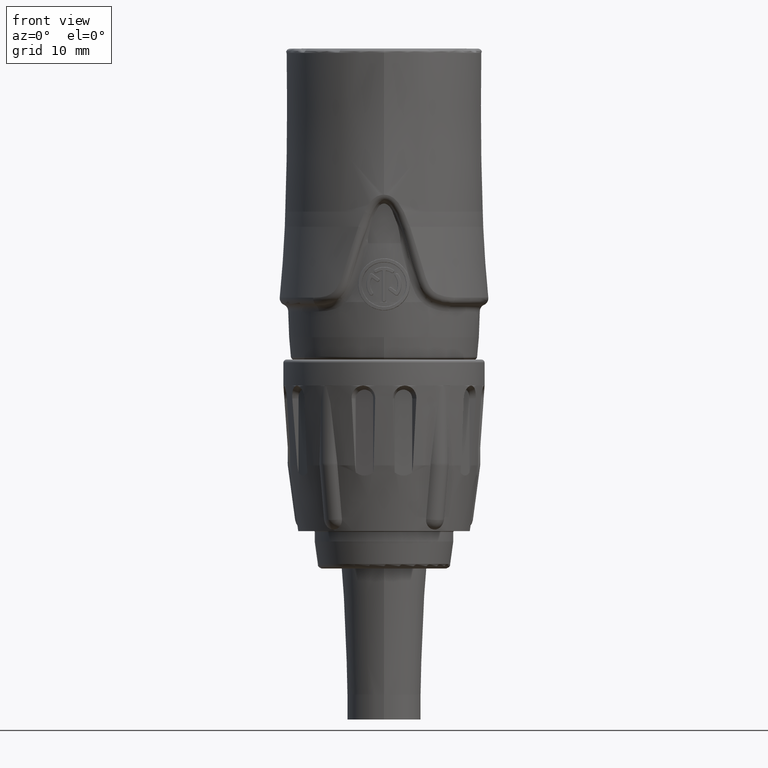
[diagram: clean part render]
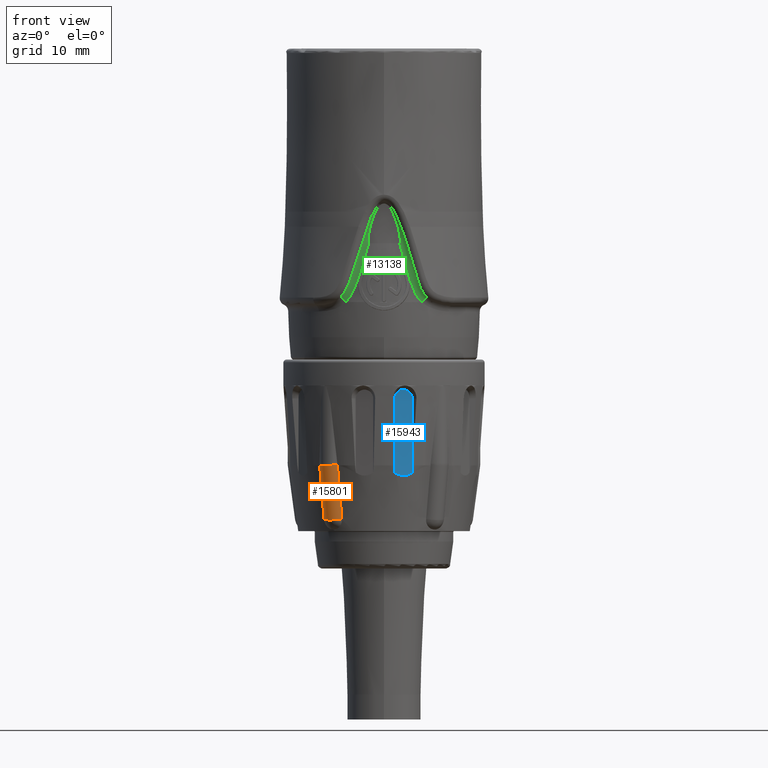
[diagram: same view with three faces highlighted in distinct colors, each labeled with its STEP entity id]
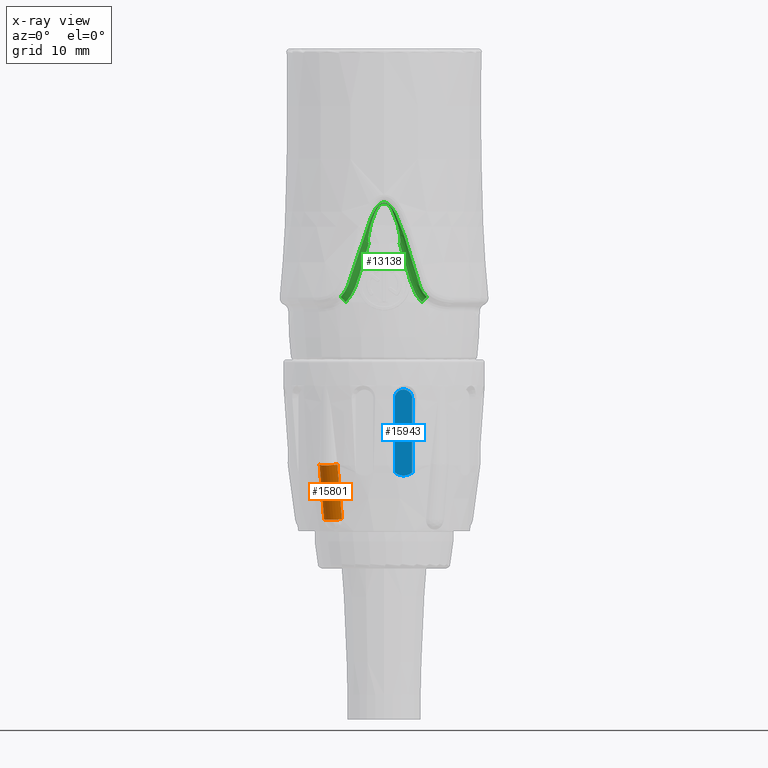
[diagram: x-ray of the same camera — body ghosted, the three highlighted faces saturated]
A machine part, front view with three faces highlighted in distinct colors.
The next image is the same camera in x-ray (body ghosted, the three faces saturated) — at least one of them is partly hidden behind the body in this view.
Their STEP definitions:

[orange] entity #15801 — the highlighted cylindrical surface (edge-blend (fillet) strip) has radius 1.25 mm, axis along (0.0818, 0.1126, -0.9903).
#3374=CARTESIAN_POINT('',(-6.195323696630E0,-6.724586697498E0,
-2.510196954776E1));
#3375=CARTESIAN_POINT('',(-6.194287040848E0,-6.724246337242E0,
-2.511559420755E1));
#3376=CARTESIAN_POINT('',(-6.192211617370E0,-6.723568898662E0,
-2.514282814630E1));
#3377=CARTESIAN_POINT('',(-6.190131948490E0,-6.722898038460E0,
-2.517003132036E1));
#3378=CARTESIAN_POINT('',(-6.189091047224E0,-6.722564256644E0,
-2.518362521544E1));
#3409=CARTESIAN_POINT('',(-4.481004229168E0,-7.963561971487E0,
-2.518362521544E1));
#3410=CARTESIAN_POINT('',(-4.481000018359E0,-7.964655071673E0,
-2.517003132036E1));
#3411=CARTESIAN_POINT('',(-4.480995391298E0,-7.966840261516E0,
-2.514282814630E1));
#3412=CARTESIAN_POINT('',(-4.480998332550E0,-7.969023446572E0,
-2.511559420755E1));
#3413=CARTESIAN_POINT('',(-4.481001690134E0,-7.970114541912E0,
-2.510196954776E1));
#3949=CARTESIAN_POINT('',(-6.189091047224E0,-6.722564256644E0,
-2.518362521544E1));
#3950=CARTESIAN_POINT('',(-6.140803690890E0,-6.655464838089E0,
-2.576758614244E1));
#3951=CARTESIAN_POINT('',(-6.044818613666E0,-6.522050461604E0,
-2.692832998252E1));
#3952=CARTESIAN_POINT('',(-5.902609035555E0,-6.324276165631E0,
-2.864791093254E1));
#3953=CARTESIAN_POINT('',(-5.808980696688E0,-6.193987057956E0,
-2.977994111916E1));
#3954=CARTESIAN_POINT('',(-5.762460857848E0,-6.129231406159E0,
-3.034236678145E1));
#3975=CARTESIAN_POINT('',(-4.048547134213E0,-7.374462615712E0,
-3.034236678145E1));
#3976=CARTESIAN_POINT('',(-4.095757998044E0,-7.438716208464E0,
-2.977994111916E1));
#3977=CARTESIAN_POINT('',(-4.190737555036E0,-7.568023598708E0,
-2.864791093254E1));
#3978=CARTESIAN_POINT('',(-4.334886911578E0,-7.764388563156E0,
-2.692832998252E1));
#3979=CARTESIAN_POINT('',(-4.432110503632E0,-7.896903105945E0,
-2.576758614244E1));
#3980=CARTESIAN_POINT('',(-4.481004229168E0,-7.963561971487E0,
-2.518362521544E1));
#5436=CARTESIAN_POINT('',(-4.952090750564E0,-6.815968177609E0,
-2.500965883924E1));
#5437=DIRECTION('',(8.180389626014E-2,1.125934038366E-1,-9.902680687416E-1));
#5438=DIRECTION('',(3.768712483439E-1,-9.233170914428E-1,-7.384856681888E-2));
#5439=AXIS2_PLACEMENT_3D('',#5436,#5437,#5438);
#5446=CARTESIAN_POINT('',(-4.519197538903E0,-6.220141787584E0,-3.025E1));
#5447=DIRECTION('',(8.180389626014E-2,1.125934038366E-1,-9.902680687416E-1));
#5448=DIRECTION('',(3.765203237519E-1,-9.234566625026E-1,-7.389342515675E-2));
#5449=AXIS2_PLACEMENT_3D('',#5446,#5447,#5448);
#9042=VERTEX_POINT('',#3374);
#9043=VERTEX_POINT('',#3378);
#9044=VERTEX_POINT('',#3409);
#9045=VERTEX_POINT('',#3413);
#9046=VERTEX_POINT('',#3975);
#9047=VERTEX_POINT('',#3954);
#15786=CARTESIAN_POINT('',(-4.952090750564E0,-6.815968177609E0,
-2.500965883924E1));
#15787=DIRECTION('',(8.180389626014E-2,1.125934038366E-1,-9.902680687416E-1));
#15788=DIRECTION('',(5.820649666224E-1,8.011436965988E-1,1.391731009601E-1));
#15789=AXIS2_PLACEMENT_3D('',#15786,#15787,#15788);
#15790=CYLINDRICAL_SURFACE('',#15789,1.25E0);
#15791=ORIENTED_EDGE('',*,*,#14108,.F.);
#15793=ORIENTED_EDGE('',*,*,#15792,.F.);
#15794=ORIENTED_EDGE('',*,*,#14143,.F.);
#15795=ORIENTED_EDGE('',*,*,#14395,.F.);
#15797=ORIENTED_EDGE('',*,*,#15796,.T.);
#15798=ORIENTED_EDGE('',*,*,#14391,.F.);
#15799=EDGE_LOOP('',(#15791,#15793,#15794,#15795,#15797,#15798));
#15800=FACE_OUTER_BOUND('',#15799,.F.);
#15801=ADVANCED_FACE('',(#15800),#15790,.T.);
#3379=B_SPLINE_CURVE_WITH_KNOTS('',3,(#3374,#3375,#3376,#3377,#3378),
.UNSPECIFIED.,.F.,.F.,(4,1,4),(0.E0,5.E-1,1.E0),.UNSPECIFIED.);
#3414=B_SPLINE_CURVE_WITH_KNOTS('',3,(#3409,#3410,#3411,#3412,#3413),
.UNSPECIFIED.,.F.,.F.,(4,1,4),(0.E0,5.E-1,1.E0),.UNSPECIFIED.);
#3955=B_SPLINE_CURVE_WITH_KNOTS('',3,(#3949,#3950,#3951,#3952,#3953,#3954),
.UNSPECIFIED.,.F.,.F.,(4,1,1,4),(0.E0,3.333333333333E-1,6.666666666667E-1,1.E0),
.UNSPECIFIED.);
#3981=B_SPLINE_CURVE_WITH_KNOTS('',3,(#3975,#3976,#3977,#3978,#3979,#3980),
.UNSPECIFIED.,.F.,.F.,(4,1,1,4),(0.E0,3.333333333333E-1,6.666666666667E-1,1.E0),
.UNSPECIFIED.);
#5440=CIRCLE('',#5439,1.25E0);
#5450=CIRCLE('',#5449,1.25E0);
#14108=EDGE_CURVE('',#9042,#9043,#3379,.T.);
#14143=EDGE_CURVE('',#9044,#9045,#3414,.T.);
#14391=EDGE_CURVE('',#9043,#9047,#3955,.T.);
#14395=EDGE_CURVE('',#9046,#9044,#3981,.T.);
#15792=EDGE_CURVE('',#9045,#9042,#5440,.T.);
#15796=EDGE_CURVE('',#9046,#9047,#5450,.T.);

[blue] entity #15943 — the highlighted planar face has unit normal (0.2079, -0.9781, 0).
#5525=CARTESIAN_POINT('',(1.871205217360E0,-8.803328406604E0,-1.875E1));
#5526=DIRECTION('',(2.079116908178E-1,-9.781476007338E-1,0.E0));
#5527=DIRECTION('',(9.781476007338E-1,2.079116908178E-1,-7.020450435505E-14));
#5528=AXIS2_PLACEMENT_3D('',#5525,#5526,#5527);
#5537=CARTESIAN_POINT('',(2.712412153991E0,-8.624524352501E0,
-2.587177442356E1));
#5547=DIRECTION('',(-8.692470748929E-6,-7.826735817547E-6,-9.999999999316E-1));
#5548=VECTOR('',#5547,7.121774424049E0);
#5549=CARTESIAN_POINT('',(2.712474059807E0,-8.624468612254E0,-1.875E1));
#5550=LINE('',#5549,#5548);
#5551=CARTESIAN_POINT('',(1.029998280729E0,-8.982132460708E0,
-2.587177442356E1));
#5552=CARTESIAN_POINT('',(1.128432034502E0,-8.961209720453E0,
-2.593988574746E1));
#5553=CARTESIAN_POINT('',(1.322852267642E0,-8.919884424178E0,
-2.605067733792E1));
#5554=CARTESIAN_POINT('',(1.604295688870E0,-8.860061778257E0,
-2.614434730113E1));
#5555=CARTESIAN_POINT('',(1.871636450060E0,-8.803236745264E0,
-2.617308567484E1));
#5556=CARTESIAN_POINT('',(2.139021407666E0,-8.746402318033E0,
-2.614414577191E1));
#5557=CARTESIAN_POINT('',(2.420249342747E0,-8.686625475107E0,
-2.605032956606E1));
#5558=CARTESIAN_POINT('',(2.614232641033E0,-8.645393052202E0,
-2.593970982530E1));
#5559=CARTESIAN_POINT('',(2.712412153991E0,-8.624524352501E0,
-2.587177442356E1));
#5561=DIRECTION('',(-1.216718591926E-5,4.031777631775E-7,9.999999999259E-1));
#5562=VECTOR('',#5561,7.122141529629E0);
#5563=CARTESIAN_POINT('',(1.029998280729E0,-8.982132460708E0,
-2.587177442356E1));
#5564=LINE('',#5563,#5562);
#9132=CARTESIAN_POINT('',(1.029911624309E0,-8.982129589218E0,
-1.874963289446E1));
#9133=VERTEX_POINT('',#9132);
#9134=CARTESIAN_POINT('',(2.712474059807E0,-8.624468612254E0,-1.875E1));
#9135=VERTEX_POINT('',#9134);
#9178=VERTEX_POINT('',#5537);
#9179=VERTEX_POINT('',#5551);
#15932=CARTESIAN_POINT('',(1.871205217360E0,-8.803328406604E0,-1.875E1));
#15933=DIRECTION('',(2.079116908178E-1,-9.781476007338E-1,0.E0));
#15934=DIRECTION('',(0.E0,0.E0,1.E0));
#15935=AXIS2_PLACEMENT_3D('',#15932,#15933,#15934);
#15936=PLANE('',#15935);
#15937=ORIENTED_EDGE('',*,*,#15926,.T.);
#15938=ORIENTED_EDGE('',*,*,#14407,.F.);
#15939=ORIENTED_EDGE('',*,*,#15898,.T.);
#15940=ORIENTED_EDGE('',*,*,#15913,.F.);
#15941=EDGE_LOOP('',(#15937,#15938,#15939,#15940));
#15942=FACE_OUTER_BOUND('',#15941,.F.);
#15943=ADVANCED_FACE('',(#15942),#15936,.T.);
#5529=CIRCLE('',#5528,8.602885682970E-1);
#5560=B_SPLINE_CURVE_WITH_KNOTS('',3,(#5551,#5552,#5553,#5554,#5555,#5556,#5557,
#5558,#5559),.UNSPECIFIED.,.F.,.F.,(4,1,1,1,1,1,4),(0.E0,1.666666666667E-1,
3.333333333333E-1,5.E-1,6.666666666667E-1,8.333333333333E-1,1.E0),
.UNSPECIFIED.);
#14407=EDGE_CURVE('',#9179,#9178,#5560,.T.);
#15898=EDGE_CURVE('',#9179,#9133,#5564,.T.);
#15913=EDGE_CURVE('',#9135,#9133,#5529,.T.);
#15926=EDGE_CURVE('',#9135,#9178,#5550,.T.);

[green] entity #13138 — the highlighted face is a freeform B-spline surface patch.
#158=CARTESIAN_POINT('',(-4.181514239202E0,-8.577136920066E0,
-9.008769894002E0));
#159=CARTESIAN_POINT('',(-4.113723630364E0,-8.604843144758E0,
-8.940091686166E0));
#160=CARTESIAN_POINT('',(-3.993313717050E0,-8.651092205502E0,
-8.802315137616E0));
#161=CARTESIAN_POINT('',(-3.845293250625E0,-8.702433476346E0,
-8.599425493125E0));
#162=CARTESIAN_POINT('',(-3.722777830970E0,-8.741006017368E0,
-8.404847551639E0));
#163=CARTESIAN_POINT('',(-3.616802366712E0,-8.771390144207E0,
-8.214891770101E0));
#164=CARTESIAN_POINT('',(-3.519701987912E0,-8.796739130956E0,
-8.021624013064E0));
#165=CARTESIAN_POINT('',(-3.427854221299E0,-8.818461070814E0,
-7.820717798684E0));
#166=CARTESIAN_POINT('',(-3.341213976400E0,-8.836879314302E0,
-7.614357316269E0));
#167=CARTESIAN_POINT('',(-3.259758712449E0,-8.852351774044E0,
-7.405119350620E0));
#168=CARTESIAN_POINT('',(-3.182844290437E0,-8.865381134624E0,
-7.194318472120E0));
#169=CARTESIAN_POINT('',(-3.108444460089E0,-8.876647438117E0,
-6.979817687413E0));
#170=CARTESIAN_POINT('',(-3.033501002746E0,-8.886685155715E0,
-6.753752432316E0));
#171=CARTESIAN_POINT('',(-2.957093288472E0,-8.895659963977E0,
-6.514031716232E0));
#172=CARTESIAN_POINT('',(-2.881272677916E0,-8.903498970643E0,
-6.269471103185E0));
#173=CARTESIAN_POINT('',(-2.802930596262E0,-8.910659091693E0,
-6.012410819778E0));
#174=CARTESIAN_POINT('',(-2.716990009167E0,-8.917511922250E0,
-5.726647848180E0));
#175=CARTESIAN_POINT('',(-2.623271621291E0,-8.923944672458E0,
-5.412939934770E0));
#176=CARTESIAN_POINT('',(-2.521484414315E0,-8.929795239725E0,
-5.071065687802E0));
#177=CARTESIAN_POINT('',(-2.408427395693E0,-8.935053527550E0,
-4.691802147281E0));
#178=CARTESIAN_POINT('',(-2.283219037369E0,-8.939525041925E0,
-4.275345768602E0));
#179=CARTESIAN_POINT('',(-2.152411885182E0,-8.942868302969E0,
-3.847410247831E0));
#180=CARTESIAN_POINT('',(-2.024855839160E0,-8.945030297824E0,
-3.440252891148E0));
#181=CARTESIAN_POINT('',(-1.907415695459E0,-8.946230497547E0,
-3.076520778229E0));
#182=CARTESIAN_POINT('',(-1.800465641175E0,-8.946785250632E0,
-2.756067365873E0));
#183=CARTESIAN_POINT('',(-1.700700549924E0,-8.946921863525E0,
-2.467637570788E0));
#184=CARTESIAN_POINT('',(-1.606648471501E0,-8.946772303800E0,
-2.206006398908E0));
#185=CARTESIAN_POINT('',(-1.517771946651E0,-8.946435219695E0,
-1.968746636162E0));
#186=CARTESIAN_POINT('',(-1.433459485507E0,-8.945981315873E0,
-1.753263744496E0));
#187=CARTESIAN_POINT('',(-1.353008933750E0,-8.945460540906E0,
-1.556876852517E0));
#188=CARTESIAN_POINT('',(-1.275794052619E0,-8.944910764273E0,
-1.377310928913E0));
#189=CARTESIAN_POINT('',(-1.201348750946E0,-8.944360013548E0,
-1.212849305764E0));
#190=CARTESIAN_POINT('',(-1.129228343963E0,-8.943827848833E0,
-1.061944300971E0));
#191=CARTESIAN_POINT('',(-1.059030363186E0,-8.943336122655E0,
-9.233191737938E-1));
#192=CARTESIAN_POINT('',(-9.903036868355E-1,-8.942893880044E0,
-7.957299082169E-1));
#193=CARTESIAN_POINT('',(-9.226845653167E-1,-8.942513748509E0,
-6.782578456340E-1));
#194=CARTESIAN_POINT('',(-8.556788620537E-1,-8.942212771696E0,
-5.699419173069E-1));
#195=CARTESIAN_POINT('',(-7.886553466213E-1,-8.941985408253E0,
-4.697299145954E-1));
#196=CARTESIAN_POINT('',(-7.207530699346E-1,-8.941871782350E0,
-3.767591770402E-1));
#197=CARTESIAN_POINT('',(-6.515289900381E-1,-8.941828553202E0,
-2.909271230731E-1));
#198=CARTESIAN_POINT('',(-5.806252784256E-1,-8.941966268668E0,
-2.122153973941E-1));
#199=CARTESIAN_POINT('',(-5.054053252558E-1,-8.942178285069E0,
-1.391826979544E-1));
#200=CARTESIAN_POINT('',(-4.262026652137E-1,-8.942561893777E0,
-7.371323766654E-2));
#201=CARTESIAN_POINT('',(-3.377905553758E-1,-8.942981672444E0,
-1.402116001491E-2));
#202=CARTESIAN_POINT('',(-2.375265899122E-1,-8.943821521180E0,
3.637253638781E-2));
#203=CARTESIAN_POINT('',(-1.239178639997E-1,-8.944290383274E0,
7.279185559036E-2));
#204=CARTESIAN_POINT('',(6.078351853259E-3,-8.944568522871E0,
8.590711232549E-2));
#205=CARTESIAN_POINT('',(1.201214969094E-1,-8.944296421890E0,
7.211812741783E-2));
#206=CARTESIAN_POINT('',(2.122038512950E-1,-8.943853478388E0,
4.505210018078E-2));
#207=CARTESIAN_POINT('',(2.866370011074E-1,-8.943412315292E0,
1.275291758714E-2));
#208=CARTESIAN_POINT('',(3.461975434031E-1,-8.942997077797E0,
-1.989918647662E-2));
#209=CARTESIAN_POINT('',(3.964990390280E-1,-8.942661191564E0,
-5.222718601527E-2));
#210=CARTESIAN_POINT('',(4.406603510466E-1,-8.942416079800E0,
-8.429410159162E-2));
#211=CARTESIAN_POINT('',(4.802921175752E-1,-8.942206924454E0,
-1.159965993182E-1));
#212=CARTESIAN_POINT('',(5.171859893020E-1,-8.942006867774E0,
-1.480031846809E-1));
#213=CARTESIAN_POINT('',(5.517973361123E-1,-8.941835865631E0,
-1.802545553093E-1));
#214=CARTESIAN_POINT('',(5.849034075559E-1,-8.941707545670E0,
-2.130918967260E-1));
#215=CARTESIAN_POINT('',(6.178096971919E-1,-8.941604796322E0,
-2.476564575362E-1));
#216=CARTESIAN_POINT('',(6.519496150599E-1,-8.941503611255E0,
-2.855511018364E-1));
#217=CARTESIAN_POINT('',(6.883004592289E-1,-8.941411359065E0,
-3.281894725589E-1));
#218=CARTESIAN_POINT('',(7.269107209188E-1,-8.941344941651E0,
-3.760613009969E-1));
#219=CARTESIAN_POINT('',(7.674233325169E-1,-8.941300812551E0,
-4.291238457923E-1));
#220=CARTESIAN_POINT('',(8.099504500447E-1,-8.941269170857E0,
-4.879226054750E-1));
#221=CARTESIAN_POINT('',(8.547485754763E-1,-8.941269103764E0,
-5.532843895303E-1));
#222=CARTESIAN_POINT('',(9.020886964227E-1,-8.941297512594E0,
-6.260949410883E-1));
#223=CARTESIAN_POINT('',(9.520172596611E-1,-8.941340942791E0,
-7.070092307519E-1));
#224=CARTESIAN_POINT('',(1.003920595790E0,-8.941408562297E0,
-7.955790982530E-1));
#225=CARTESIAN_POINT('',(1.057500217538E0,-8.941488215362E0,
-8.916472202374E-1));
#226=CARTESIAN_POINT('',(1.112570059542E0,-8.941579954782E0,
-9.952437284416E-1));
#227=CARTESIAN_POINT('',(1.169679627890E0,-8.941672200844E0,-1.107701899092E0));
#228=CARTESIAN_POINT('',(1.229827968835E0,-8.941761019613E0,-1.231603404051E0));
#229=CARTESIAN_POINT('',(1.293662523861E0,-8.941833273182E0,-1.369077649182E0));
#230=CARTESIAN_POINT('',(1.360427376186E0,-8.941874224594E0,-1.519363480513E0));
#231=CARTESIAN_POINT('',(1.428021766745E0,-8.941864874201E0,-1.678096882554E0));
#232=CARTESIAN_POINT('',(1.494734043569E0,-8.941795170972E0,-1.841050958435E0));
#233=CARTESIAN_POINT('',(1.559899842878E0,-8.941655771627E0,-2.006035939956E0));
#234=CARTESIAN_POINT('',(1.623613803925E0,-8.941442379566E0,-2.172743511114E0));
#235=CARTESIAN_POINT('',(1.685979834661E0,-8.941149194033E0,-2.340923993695E0));
#236=CARTESIAN_POINT('',(1.747042633920E0,-8.940770450805E0,-2.510230396629E0));
#237=CARTESIAN_POINT('',(1.806747032330E0,-8.940306482960E0,-2.680103093359E0));
#238=CARTESIAN_POINT('',(1.865051316695E0,-8.939753430895E0,-2.849957277303E0));
#239=CARTESIAN_POINT('',(1.921954715202E0,-8.939111693252E0,-3.019404244024E0));
#240=CARTESIAN_POINT('',(1.978267880629E0,-8.938371645852E0,-3.190523454282E0));
#241=CARTESIAN_POINT('',(2.035766838006E0,-8.937499724463E0,-3.368622183926E0));
#242=CARTESIAN_POINT('',(2.096433991852E0,-8.936444125974E0,-3.560102880299E0));
#243=CARTESIAN_POINT('',(2.162016197740E0,-8.935135089421E0,-3.771064703401E0));
#244=CARTESIAN_POINT('',(2.233103843851E0,-8.933502136667E0,-4.004179908265E0));
#245=CARTESIAN_POINT('',(2.309537859856E0,-8.931479241157E0,-4.259698569945E0));
#246=CARTESIAN_POINT('',(2.390866655343E0,-8.928994705783E0,-4.536730103609E0));
#247=CARTESIAN_POINT('',(2.474399448338E0,-8.926050229451E0,-4.826348947717E0));
#248=CARTESIAN_POINT('',(2.555783884864E0,-8.922763015651E0,-5.112969977534E0));
#249=CARTESIAN_POINT('',(2.631703356503E0,-8.919292296493E0,-5.383719473295E0));
#250=CARTESIAN_POINT('',(2.701177942419E0,-8.915740923398E0,-5.633755946833E0));
#251=CARTESIAN_POINT('',(2.763199396138E0,-8.912242827222E0,-5.858504965215E0));
#252=CARTESIAN_POINT('',(2.819373301492E0,-8.908806357644E0,-6.063222904861E0));
#253=CARTESIAN_POINT('',(2.874858220838E0,-8.905136901090E0,-6.265986381750E0));
#254=CARTESIAN_POINT('',(2.929828501217E0,-8.901102945561E0,-6.465595375449E0));
#255=CARTESIAN_POINT('',(2.981489852527E0,-8.896824906639E0,-6.650356613573E0));
#256=CARTESIAN_POINT('',(3.031291585592E0,-8.892173867287E0,-6.824599361091E0));
#257=CARTESIAN_POINT('',(3.080949204047E0,-8.886927715771E0,-6.993143987549E0));
#258=CARTESIAN_POINT('',(3.132356666825E0,-8.880755012884E0,-7.160829086484E0));
#259=CARTESIAN_POINT('',(3.186206980299E0,-8.873407329187E0,-7.328185421187E0));
#260=CARTESIAN_POINT('',(3.240406794314E0,-8.865047067893E0,-7.487251886787E0));
#261=CARTESIAN_POINT('',(3.293310975754E0,-8.855929761930E0,-7.633192099559E0));
#262=CARTESIAN_POINT('',(3.345984186139E0,-8.845933378855E0,-7.769682934505E0));
#263=CARTESIAN_POINT('',(3.400523355500E0,-8.834624107828E0,-7.901641816782E0));
#264=CARTESIAN_POINT('',(3.459620126853E0,-8.821278265296E0,-8.034664237504E0));
#265=CARTESIAN_POINT('',(3.524028967103E0,-8.805496477308E0,-8.168119648935E0));
#266=CARTESIAN_POINT('',(3.592716644571E0,-8.787256596925E0,-8.298100972569E0));
#267=CARTESIAN_POINT('',(3.664844987612E0,-8.766631908812E0,-8.422492756262E0));
#268=CARTESIAN_POINT('',(3.741079799356E0,-8.743326846511E0,-8.541727829146E0));
#269=CARTESIAN_POINT('',(3.822562175340E0,-8.716710173868E0,-8.656660030716E0));
#270=CARTESIAN_POINT('',(3.908963663014E0,-8.686680400983E0,-8.766302186694E0));
#271=CARTESIAN_POINT('',(4.005601042777E0,-8.651062973531E0,-8.875934892071E0));
#272=CARTESIAN_POINT('',(4.082179685803E0,-8.620988175940E0,-8.952491354786E0));
#273=CARTESIAN_POINT('',(4.123451724835E0,-8.604188157956E0,-8.990699894718E0));
#2240=CARTESIAN_POINT('',(-3.968057860558E0,-9.095332060062E0,
-9.428186423847E0));
#2241=DIRECTION('',(6.967923816159E-1,-2.557093919051E-1,6.701440769070E-1));
#2242=DIRECTION('',(3.990064566825E-1,9.145773872341E-1,-6.589423560372E-2));
#2243=AXIS2_PLACEMENT_3D('',#2240,#2241,#2242);
#2250=CARTESIAN_POINT('',(-1.469740236600E0,-8.727963207021E0,
-3.812276704006E0));
#2251=CARTESIAN_POINT('',(-1.478972854583E0,-8.726408485758E0,
-3.812276684283E0));
#2252=CARTESIAN_POINT('',(-1.495417046213E0,-8.723610018873E0,
-3.806813323011E0));
#2253=CARTESIAN_POINT('',(-1.514656892412E0,-8.720285223624E0,
-3.782825453454E0));
#2254=CARTESIAN_POINT('',(-1.526767234870E0,-8.718170143797E0,
-3.752208380015E0));
#2255=CARTESIAN_POINT('',(-1.535160041444E0,-8.716695382708E0,
-3.717176523808E0));
#2256=CARTESIAN_POINT('',(-1.540760208598E0,-8.715706649171E0,
-3.678264564511E0));
#2257=CARTESIAN_POINT('',(-1.544222177858E0,-8.715093689141E0,
-3.635607854677E0));
#2258=CARTESIAN_POINT('',(-1.545841251513E0,-8.714806535327E0,
-3.589113027952E0));
#2259=CARTESIAN_POINT('',(-1.545782791016E0,-8.714816910667E0,
-3.538599092791E0));
#2260=CARTESIAN_POINT('',(-1.544115415528E0,-8.715112599955E0,
-3.483821106050E0));
#2261=CARTESIAN_POINT('',(-1.540848831348E0,-8.715690938773E0,
-3.424496922634E0));
#2262=CARTESIAN_POINT('',(-1.535947911352E0,-8.716556273740E0,
-3.360305614088E0));
#2263=CARTESIAN_POINT('',(-1.529341496514E0,-8.717718267275E0,
-3.290891994022E0));
#2264=CARTESIAN_POINT('',(-1.520926237555E0,-8.719190981635E0,
-3.215866008945E0));
#2265=CARTESIAN_POINT('',(-1.510567830104E0,-8.720992327118E0,
-3.134801756225E0));
#2266=CARTESIAN_POINT('',(-1.498099024541E0,-8.723143956102E0,
-3.047235568283E0));
#2267=CARTESIAN_POINT('',(-1.483317287289E0,-8.725671064745E0,
-2.952663594571E0));
#2268=CARTESIAN_POINT('',(-1.465980720005E0,-8.728602299313E0,
-2.850539023144E0));
#2269=CARTESIAN_POINT('',(-1.445800838385E0,-8.731969933647E0,
-2.740268266564E0));
#2270=CARTESIAN_POINT('',(-1.422430549693E0,-8.735810449336E0,
-2.621208151101E0));
#2271=CARTESIAN_POINT('',(-1.395457045304E0,-8.740163786651E0,
-2.492659903090E0));
#2272=CARTESIAN_POINT('',(-1.364372578761E0,-8.745075398062E0,
-2.353867196912E0));
#2273=CARTESIAN_POINT('',(-1.328558022059E0,-8.750595040159E0,
-2.204013910142E0));
#2274=CARTESIAN_POINT('',(-1.287233195934E0,-8.756778927334E0,
-2.042218621076E0));
#2275=CARTESIAN_POINT('',(-1.239410539798E0,-8.763688598497E0,
-1.867538764392E0));
#2276=CARTESIAN_POINT('',(-1.183773015085E0,-8.771395421901E0,
-1.678911166364E0));
#2277=CARTESIAN_POINT('',(-1.118597478007E0,-8.779971995206E0,
-1.475386653135E0));
#2278=CARTESIAN_POINT('',(-1.041176024540E0,-8.789529702557E0,
-1.255342919034E0));
#2279=CARTESIAN_POINT('',(-9.482506740947E-1,-8.800101886154E0,
-1.019188750231E0));
#2280=CARTESIAN_POINT('',(-8.322007460840E-1,-8.811969494522E0,
-7.623518650117E-1));
#2281=CARTESIAN_POINT('',(-6.845579221686E-1,-8.824807298401E0,
-4.946956943476E-1));
#2282=CARTESIAN_POINT('',(-5.207865443565E-1,-8.836049956992E0,
-2.702252062134E-1));
#2283=CARTESIAN_POINT('',(-3.438213637614E-1,-8.844836547842E0,
-1.025867048212E-1));
#2284=CARTESIAN_POINT('',(-1.490980262903E-1,-8.850284770562E0,
-3.630705914903E-3));
#2285=CARTESIAN_POINT('',(3.700302675150E-2,-8.851420000204E0,
1.669629877087E-2));
#2286=CARTESIAN_POINT('',(2.275079034669E-1,-8.848629614682E0,
-3.321473505965E-2));
#2287=CARTESIAN_POINT('',(4.185463766401E-1,-8.841577967328E0,
-1.617403202202E-1));
#2288=CARTESIAN_POINT('',(5.906116005146E-1,-8.831619455971E0,
-3.503343486469E-1));
#2289=CARTESIAN_POINT('',(7.476057148595E-1,-8.819661695900E0,
-5.844165963841E-1));
#2290=CARTESIAN_POINT('',(8.964679849203E-1,-8.805716068980E0,
-8.664219188052E-1));
#2291=CARTESIAN_POINT('',(1.026547025784E0,-8.791358489282E0,
-1.167192536526E0));
#2292=CARTESIAN_POINT('',(1.123433561183E0,-8.779397245292E0,
-1.426630620836E0));
#2293=CARTESIAN_POINT('',(1.202220754088E0,-8.768914847150E0,
-1.661508866113E0));
#2294=CARTESIAN_POINT('',(1.266357430340E0,-8.759849090162E0,
-1.871835742372E0));
#2295=CARTESIAN_POINT('',(1.319775358969E0,-8.751941655273E0,
-2.062009474127E0));
#2296=CARTESIAN_POINT('',(1.364588643278E0,-8.745052857583E0,
-2.234194294724E0));
#2297=CARTESIAN_POINT('',(1.402488414822E0,-8.739045636031E0,
-2.390665765302E0));
#2298=CARTESIAN_POINT('',(1.434676577795E0,-8.733812511355E0,
-2.533187096687E0));
#2299=CARTESIAN_POINT('',(1.462076702850E0,-8.729262714371E0,
-2.663301597200E0));
#2300=CARTESIAN_POINT('',(1.485405070305E0,-8.725319917520E0,
-2.782318109697E0));
#2301=CARTESIAN_POINT('',(1.505237266997E0,-8.721917942961E0,
-2.891367552804E0));
#2302=CARTESIAN_POINT('',(1.522027687662E0,-8.719001712644E0,
-2.991432900376E0));
#2303=CARTESIAN_POINT('',(1.536145383162E0,-8.716524090758E0,
-3.083373706852E0));
#2304=CARTESIAN_POINT('',(1.547891906148E0,-8.714444759929E0,
-3.167946073029E0));
#2305=CARTESIAN_POINT('',(1.557512876461E0,-8.712729603292E0,
-3.245818469333E0));
#2306=CARTESIAN_POINT('',(1.565206528885E0,-8.711350199163E0,
-3.317583807191E0));
#2307=CARTESIAN_POINT('',(1.571129665801E0,-8.710283485952E0,
-3.383771031543E0));
#2308=CARTESIAN_POINT('',(1.575399846255E0,-8.709511894634E0,
-3.444848073356E0));
#2309=CARTESIAN_POINT('',(1.578096769146E0,-8.709023471920E0,
-3.501241464342E0));
#2310=CARTESIAN_POINT('',(1.579257081169E0,-8.708813070538E0,
-3.553305708901E0));
#2311=CARTESIAN_POINT('',(1.578869589746E0,-8.708883351944E0,
-3.601307443294E0));
#2312=CARTESIAN_POINT('',(1.576866103434E0,-8.709246470139E0,
-3.645467831140E0));
#2313=CARTESIAN_POINT('',(1.573085072087E0,-8.709930470269E0,
-3.685957416013E0));
#2314=CARTESIAN_POINT('',(1.567239060703E0,-8.710984854326E0,
-3.722824489213E0));
#2315=CARTESIAN_POINT('',(1.558708946655E0,-8.712516120480E0,
-3.755973446917E0));
#2316=CARTESIAN_POINT('',(1.546571507143E0,-8.714681391904E0,
-3.784726234444E0));
#2317=CARTESIAN_POINT('',(1.528118912154E0,-8.717940468967E0,
-3.806884261138E0));
#2318=CARTESIAN_POINT('',(1.511979983436E0,-8.720749937958E0,
-3.812277623870E0));
#2319=CARTESIAN_POINT('',(1.502902639980E0,-8.722314014121E0,
-3.812277629060E0));
#2599=CARTESIAN_POINT('',(1.502902639980E0,-8.722314014121E0,
-3.812277629060E0));
#2600=CARTESIAN_POINT('',(1.523280823853E0,-8.723278563132E0,
-3.879070039215E0));
#2601=CARTESIAN_POINT('',(1.565873775517E0,-8.725240852205E0,
-4.019909617491E0));
#2602=CARTESIAN_POINT('',(1.635006495996E0,-8.728211702947E0,
-4.252806601885E0));
#2603=CARTESIAN_POINT('',(1.709371713168E0,-8.731139532181E0,
-4.508004801075E0));
#2604=CARTESIAN_POINT('',(1.788188756546E0,-8.733909547411E0,
-4.783357719658E0));
#2605=CARTESIAN_POINT('',(1.868538442251E0,-8.736345845670E0,
-5.068768203827E0));
#2606=CARTESIAN_POINT('',(1.946294201103E0,-8.738298445871E0,
-5.348969758124E0));
#2607=CARTESIAN_POINT('',(2.018670414114E0,-8.739725263718E0,
-5.612740164076E0));
#2608=CARTESIAN_POINT('',(2.084776560276E0,-8.740665739178E0,
-5.855614024791E0));
#2609=CARTESIAN_POINT('',(2.143869416689E0,-8.741198355043E0,
-6.074045328768E0));
#2610=CARTESIAN_POINT('',(2.198016617589E0,-8.741432768738E0,
-6.275187287763E0));
#2611=CARTESIAN_POINT('',(2.252146967843E0,-8.741377797808E0,
-6.476558754311E0));
#2612=CARTESIAN_POINT('',(2.305921144384E0,-8.740898975169E0,
-6.675035594325E0));
#2613=CARTESIAN_POINT('',(2.356853225846E0,-8.739948555013E0,
-6.859968759886E0));
#2614=CARTESIAN_POINT('',(2.406541025493E0,-8.738476298638E0,
-7.036302049065E0));
#2615=CARTESIAN_POINT('',(2.456883880658E0,-8.736337751427E0,
-7.209456733167E0));
#2616=CARTESIAN_POINT('',(2.509622760269E0,-8.733309345748E0,
-7.383642676486E0));
#2617=CARTESIAN_POINT('',(2.565336689464E0,-8.729172080391E0,
-7.558856029232E0));
#2618=CARTESIAN_POINT('',(2.621966673262E0,-8.723924499387E0,
-7.726997405617E0));
#2619=CARTESIAN_POINT('',(2.677903495812E0,-8.717704921720E0,
-7.883157102474E0));
#2620=CARTESIAN_POINT('',(2.734465390927E0,-8.710401998506E0,
-8.031507030584E0));
#2621=CARTESIAN_POINT('',(2.794140076649E0,-8.701594629438E0,
-8.177708133992E0));
#2622=CARTESIAN_POINT('',(2.859501387349E0,-8.690710183324E0,
-8.326672249276E0));
#2623=CARTESIAN_POINT('',(2.932180802481E0,-8.677115362203E0,
-8.479249272784E0));
#2624=CARTESIAN_POINT('',(3.010655542732E0,-8.660741568981E0,
-8.629767322723E0));
#2625=CARTESIAN_POINT('',(3.094244552392E0,-8.641508716620E0,
-8.775997762515E0));
#2626=CARTESIAN_POINT('',(3.184306616885E0,-8.618829972670E0,
-8.919060807479E0));
#2627=CARTESIAN_POINT('',(3.281742844727E0,-8.592107877410E0,
-9.058745087585E0));
#2628=CARTESIAN_POINT('',(3.386463626066E0,-8.561019175404E0,
-9.193927750626E0));
#2629=CARTESIAN_POINT('',(3.504762631822E0,-8.523134508046E0,
-9.330612245037E0));
#2630=CARTESIAN_POINT('',(3.598715308428E0,-8.490572320026E0,
-9.426350616334E0));
#2631=CARTESIAN_POINT('',(3.649485496326E0,-8.472151142146E0,
-9.474312827116E0));
#2633=CARTESIAN_POINT('',(-3.688753796663E0,-8.455127721736E0,
-9.474312827121E0));
#2634=CARTESIAN_POINT('',(-3.608021240080E0,-8.484342372019E0,
-9.390941770613E0));
#2635=CARTESIAN_POINT('',(-3.463958251682E0,-8.532585312274E0,
-9.223437956805E0));
#2636=CARTESIAN_POINT('',(-3.291931900598E0,-8.583220257746E0,
-8.984316117957E0));
#2637=CARTESIAN_POINT('',(-3.152279334852E0,-8.619567398546E0,
-8.760138008604E0));
#2638=CARTESIAN_POINT('',(-3.034101780376E0,-8.646824837827E0,
-8.546265356834E0));
#2639=CARTESIAN_POINT('',(-2.928262396549E0,-8.668393782609E0,
-8.333856084878E0));
#2640=CARTESIAN_POINT('',(-2.829980507252E0,-8.685911951704E0,
-8.117352527734E0));
#2641=CARTESIAN_POINT('',(-2.738533593028E0,-8.699974841138E0,
-7.898129225037E0));
#2642=CARTESIAN_POINT('',(-2.653550728076E0,-8.711081249981E0,
-7.678398712697E0));
#2643=CARTESIAN_POINT('',(-2.574591917567E0,-8.719719044358E0,
-7.460420558176E0));
#2644=CARTESIAN_POINT('',(-2.499470586273E0,-8.726542453946E0,
-7.242046708300E0));
#2645=CARTESIAN_POINT('',(-2.424740033209E0,-8.732022339314E0,
-7.014693950088E0));
#2646=CARTESIAN_POINT('',(-2.349315582124E0,-8.736274287222E0,
-6.775720395388E0));
#2647=CARTESIAN_POINT('',(-2.275065387310E0,-8.739357503633E0,
-6.533270560007E0));
#2648=CARTESIAN_POINT('',(-2.199797370093E0,-8.741556211556E0,
-6.282732652568E0));
#2649=CARTESIAN_POINT('',(-2.118729001071E0,-8.742974513430E0,
-6.008919237876E0));
#2650=CARTESIAN_POINT('',(-2.030580591415E0,-8.743525415150E0,
-5.708537676677E0));
#2651=CARTESIAN_POINT('',(-1.935334858778E0,-8.743070891858E0,
-5.382408338220E0));
#2652=CARTESIAN_POINT('',(-1.830668183688E0,-8.741413550722E0,
-5.023550814609E0));
#2653=CARTESIAN_POINT('',(-1.714907402222E0,-8.738328054902E0,
-4.628571401729E0));
#2654=CARTESIAN_POINT('',(-1.591010493385E0,-8.733722578021E0,
-4.211111178304E0));
#2655=CARTESIAN_POINT('',(-1.510358611116E0,-8.729991333426E0,
-3.944699139895E0));
#2656=CARTESIAN_POINT('',(-1.469740236600E0,-8.727963207021E0,
-3.812276704006E0));
#3010=CARTESIAN_POINT('',(3.649485496326E0,-8.472151142146E0,
-9.474312827116E0));
#3084=CARTESIAN_POINT('',(3.925816726212E0,-9.113644282142E0,
-9.428186882923E0));
#3085=DIRECTION('',(7.237715772220E-1,2.659914719700E-1,-6.367128401759E-1));
#3086=DIRECTION('',(-3.947588950901E-1,9.164187731675E-1,-6.589421016608E-2));
#3087=AXIS2_PLACEMENT_3D('',#3084,#3085,#3086);
#8305=VERTEX_POINT('',#158);
#8306=VERTEX_POINT('',#273);
#8307=CARTESIAN_POINT('',(-3.688753340880E0,-8.455127888999E0,
-9.474312388770E0));
#8308=VERTEX_POINT('',#8307);
#8989=VERTEX_POINT('',#3010);
#9353=VERTEX_POINT('',#2656);
#9354=VERTEX_POINT('',#2599);
#12661=CARTESIAN_POINT('',(-3.688753736486E0,-8.455127753658E0,
-9.474312905796E0));
#12662=CARTESIAN_POINT('',(-3.611108538977E0,-8.483225143793E0,
-9.394130821110E0));
#12663=CARTESIAN_POINT('',(-3.471844222593E0,-8.530165588816E0,
-9.233802252688E0));
#12664=CARTESIAN_POINT('',(-3.294149124805E0,-8.582658042747E0,
-8.987961056064E0));
#12665=CARTESIAN_POINT('',(-3.149327324261E0,-8.620332953451E0,
-8.755388692599E0));
#12666=CARTESIAN_POINT('',(-3.026641002756E0,-8.648469597567E0,
-8.532218661962E0));
#12667=CARTESIAN_POINT('',(-2.917999832659E0,-8.670357502369E0,
-8.312294181547E0));
#12668=CARTESIAN_POINT('',(-2.818641595210E0,-8.687786815375E0,
-8.091223906930E0));
#12669=CARTESIAN_POINT('',(-2.726565016009E0,-8.701665656403E0,
-7.868223601599E0));
#12670=CARTESIAN_POINT('',(-2.640944407252E0,-8.712579648554E0,
-7.644573341281E0));
#12671=CARTESIAN_POINT('',(-2.560587936703E0,-8.721105148222E0,
-7.420592300448E0));
#12672=CARTESIAN_POINT('',(-2.483099838535E0,-8.727866201635E0,
-7.193192928158E0));
#12673=CARTESIAN_POINT('',(-2.406691978437E0,-8.733158130004E0,
-6.958362551517E0));
#12674=CARTESIAN_POINT('',(-2.330657440269E0,-8.737151290600E0,
-6.715405443887E0));
#12675=CARTESIAN_POINT('',(-2.253882962714E0,-8.740075881193E0,
-6.463217965180E0));
#12676=CARTESIAN_POINT('',(-2.174168353641E0,-8.742115848439E0,
-6.196592114356E0));
#12677=CARTESIAN_POINT('',(-2.089165009787E0,-8.743271868920E0,
-5.908378205195E0));
#12678=CARTESIAN_POINT('',(-1.996827342992E0,-8.743493980742E0,
-5.593120605892E0));
#12679=CARTESIAN_POINT('',(-1.895972402803E0,-8.742590650531E0,
-5.247403964303E0));
#12680=CARTESIAN_POINT('',(-1.785733519841E0,-8.740365991885E0,
-4.869836138747E0));
#12681=CARTESIAN_POINT('',(-1.667210023093E0,-8.736702991686E0,
-4.467067476748E0));
#12682=CARTESIAN_POINT('',(-1.544855290784E0,-8.731707436566E0,
-4.057534854945E0));
#12683=CARTESIAN_POINT('',(-1.425003418216E0,-8.725800855049E0,
-3.665367709364E0));
#12684=CARTESIAN_POINT('',(-1.312509337356E0,-8.719499461041E0,
-3.307595435986E0));
#12685=CARTESIAN_POINT('',(-1.208918302239E0,-8.713164900158E0,
-2.988600229755E0));
#12686=CARTESIAN_POINT('',(-1.113236831233E0,-8.706945645019E0,
-2.704156321387E0));
#12687=CARTESIAN_POINT('',(-1.023955082273E0,-8.700884379780E0,
-2.448585701786E0));
#12688=CARTESIAN_POINT('',(-9.401209744374E-1,-8.695018508457E0,
-2.218128875835E0));
#12689=CARTESIAN_POINT('',(-8.611307240816E-1,-8.689380019943E0,
-2.010122139432E0));
#12690=CARTESIAN_POINT('',(-7.864202726019E-1,-8.683983128803E0,
-1.822119382427E0));
#12691=CARTESIAN_POINT('',(-7.154794073052E-1,-8.678832495096E0,
-1.651974515361E0));
#12692=CARTESIAN_POINT('',(-6.478956717493E-1,-8.673930351896E0,
-1.497928875166E0));
#12693=CARTESIAN_POINT('',(-5.833508011302E-1,-8.669276997288E0,
-1.358529648776E0));
#12694=CARTESIAN_POINT('',(-5.215514427098E-1,-8.664872530176E0,
-1.232530230602E0));
#12695=CARTESIAN_POINT('',(-4.623194023187E-1,-8.660719430275E0,
-1.118970571964E0));
#12696=CARTESIAN_POINT('',(-4.054425922206E-1,-8.656815996586E0,
-1.016904011904E0));
#12697=CARTESIAN_POINT('',(-3.507578057808E-1,-8.653165521057E0,
-9.256045461225E-1));
#12698=CARTESIAN_POINT('',(-2.982138259260E-1,-8.649769780202E0,
-8.444582754282E-1));
#12699=CARTESIAN_POINT('',(-2.477524047278E-1,-8.646646745808E0,
-7.731468588079E-1));
#12700=CARTESIAN_POINT('',(-1.996085441850E-1,-8.643814585500E0,
-7.114771562730E-1));
#12701=CARTESIAN_POINT('',(-1.538765607438E-1,-8.641291619477E0,
-6.592123006363E-1));
#12702=CARTESIAN_POINT('',(-1.119813094526E-1,-8.639162803175E0,
-6.172950277307E-1));
#12703=CARTESIAN_POINT('',(-7.301279481076E-2,-8.637396748739E0,
-5.843420825764E-1));
#12704=CARTESIAN_POINT('',(-4.078178290374E-2,-8.636147637551E0,
-5.623540793239E-1));
#12705=CARTESIAN_POINT('',(-1.618748030284E-2,-8.635421497859E0,
-5.502496874961E-1));
#12706=CARTESIAN_POINT('',(-1.640317649378E-3,-8.635166906161E0,
-5.462658635026E-1));
#12707=CARTESIAN_POINT('',(-2.403471095420E-4,-8.635188085092E0,
-5.466022280868E-1));
#12708=CARTESIAN_POINT('',(2.599844481914E-3,-8.635181699828E0,
-5.464956445913E-1));
#12709=CARTESIAN_POINT('',(1.307278889702E-2,-8.635352426325E0,
-5.491831654850E-1));
#12710=CARTESIAN_POINT('',(2.888214199888E-2,-8.635755992943E0,
-5.558424694567E-1));
#12711=CARTESIAN_POINT('',(4.673377727155E-2,-8.636325592251E0,
-5.656437879945E-1));
#12712=CARTESIAN_POINT('',(6.488289859836E-2,-8.636990845675E0,
-5.774900257623E-1));
#12713=CARTESIAN_POINT('',(8.357791653306E-2,-8.637746007608E0,
-5.913497386144E-1));
#12714=CARTESIAN_POINT('',(1.028417225170E-1,-8.638581513996E0,
-6.071453254262E-1));
#12715=CARTESIAN_POINT('',(1.221115971674E-1,-8.639463881319E0,
-6.243046858081E-1));
#12716=CARTESIAN_POINT('',(1.415448448069E-1,-8.640396095552E0,
-6.429062014258E-1));
#12717=CARTESIAN_POINT('',(1.614625072910E-1,-8.641390323622E0,
-6.632387862710E-1));
#12718=CARTESIAN_POINT('',(1.824588771991E-1,-8.642475513575E0,
-6.859766027278E-1));
#12719=CARTESIAN_POINT('',(2.051735067289E-1,-8.643686526426E0,
-7.119942749490E-1));
#12720=CARTESIAN_POINT('',(2.301134943293E-1,-8.645056070957E0,
-7.421964725061E-1));
#12721=CARTESIAN_POINT('',(2.575459769442E-1,-8.646605251602E0,
-7.773159617577E-1));
#12722=CARTESIAN_POINT('',(2.875467271170E-1,-8.648343353999E0,
-8.178905588497E-1));
#12723=CARTESIAN_POINT('',(3.200822588670E-1,-8.650273173497E0,
-8.643424230393E-1));
#12724=CARTESIAN_POINT('',(3.553694243877E-1,-8.652414186677E0,
-9.175228601632E-1));
#12725=CARTESIAN_POINT('',(3.936219519066E-1,-8.654780615222E0,
-9.783027821889E-1));
#12726=CARTESIAN_POINT('',(4.346639488521E-1,-8.657362331722E0,
-1.046989893515E0));
#12727=CARTESIAN_POINT('',(4.782957613635E-1,-8.660148938770E0,
-1.123851734674E0));
#12728=CARTESIAN_POINT('',(5.242424724625E-1,-8.663117219262E0,
-1.208866654277E0));
#12729=CARTESIAN_POINT('',(5.724887491668E-1,-8.666264701429E0,
-1.302513716131E0));
#12730=CARTESIAN_POINT('',(6.234250765382E-1,-8.669607322494E0,
-1.406009864001E0));
#12731=CARTESIAN_POINT('',(6.775322955242E-1,-8.673172081530E0,
-1.521022720311E0));
#12732=CARTESIAN_POINT('',(7.349868136353E-1,-8.676958101791E0,
-1.648654371148E0));
#12733=CARTESIAN_POINT('',(7.950755038464E-1,-8.680906609807E0,
-1.788042455720E0));
#12734=CARTESIAN_POINT('',(8.564952046969E-1,-8.684915235180E0,
-1.936512812279E0));
#12735=CARTESIAN_POINT('',(9.179326633964E-1,-8.688885079658E0,
-2.090865854942E0));
#12736=CARTESIAN_POINT('',(9.786285968983E-1,-8.692753835036E0,
-2.248836099348E0));
#12737=CARTESIAN_POINT('',(1.038315087666E0,-8.696496806443E0,
-2.409309319430E0));
#12738=CARTESIAN_POINT('',(1.096985461323E0,-8.700104981865E0,
-2.571812603323E0));
#12739=CARTESIAN_POINT('',(1.154610819009E0,-8.703569815987E0,
-2.735843803794E0));
#12740=CARTESIAN_POINT('',(1.211144041752E0,-8.706885875935E0,
-2.900903627648E0));
#12741=CARTESIAN_POINT('',(1.266582331952E0,-8.710046696754E0,
-3.066562047914E0));
#12742=CARTESIAN_POINT('',(1.321192395491E0,-8.713066064479E0,
-3.233300360494E0));
#12743=CARTESIAN_POINT('',(1.375804675680E0,-8.715984649887E0,
-3.403426194036E0));
#12744=CARTESIAN_POINT('',(1.431821476358E0,-8.718864820437E0,
-3.581280568385E0));
#12745=CARTESIAN_POINT('',(1.490884337233E0,-8.721768357067E0,
-3.772339244348E0));
#12746=CARTESIAN_POINT('',(1.554326992322E0,-8.724722916234E0,
-3.981432777505E0));
#12747=CARTESIAN_POINT('',(1.622849672386E0,-8.727706505739E0,
-4.211533123173E0));
#12748=CARTESIAN_POINT('',(1.696389622175E0,-8.730649565575E0,
-4.463121820616E0));
#12749=CARTESIAN_POINT('',(1.773837515471E0,-8.733431361231E0,
-4.732878228733E0));
#12750=CARTESIAN_POINT('',(1.852837381609E0,-8.735900886631E0,
-5.012660398489E0));
#12751=CARTESIAN_POINT('',(1.930285835915E0,-8.737930073163E0,
-5.290994539866E0));
#12752=CARTESIAN_POINT('',(2.003498032545E0,-8.739459347418E0,
-5.557243246584E0));
#12753=CARTESIAN_POINT('',(2.070845285847E0,-8.740498032271E0,
-5.804295425201E0));
#12754=CARTESIAN_POINT('',(2.132234119912E0,-8.741118310092E0,
-6.030931705557E0));
#12755=CARTESIAN_POINT('',(2.189193742507E0,-8.741414138953E0,
-6.242353453944E0));
#12756=CARTESIAN_POINT('',(2.243774311604E0,-8.741410029970E0,
-6.445461691202E0));
#12757=CARTESIAN_POINT('',(2.297040421852E0,-8.741012422987E0,
-6.642445726960E0));
#12758=CARTESIAN_POINT('',(2.348969578797E0,-8.740133384727E0,
-6.831608460187E0));
#12759=CARTESIAN_POINT('',(2.399802288527E0,-8.738714675955E0,
-7.012704207850E0));
#12760=CARTESIAN_POINT('',(2.450997511533E0,-8.736628302394E0,
-7.189575741969E0));
#12761=CARTESIAN_POINT('',(2.503899016762E0,-8.733679188361E0,
-7.365121520727E0));
#12762=CARTESIAN_POINT('',(2.558770609215E0,-8.729709240355E0,
-7.538677137686E0));
#12763=CARTESIAN_POINT('',(2.614957166354E0,-8.724633316475E0,
-7.706755915956E0));
#12764=CARTESIAN_POINT('',(2.671770784885E0,-8.718441630136E0,
-7.866554101220E0));
#12765=CARTESIAN_POINT('',(2.729632157340E0,-8.711073924332E0,
-8.019282099732E0));
#12766=CARTESIAN_POINT('',(2.790541444528E0,-8.702163405846E0,
-8.169234663788E0));
#12767=CARTESIAN_POINT('',(2.856314611409E0,-8.691271984259E0,
-8.319685154715E0));
#12768=CARTESIAN_POINT('',(2.928354881640E0,-8.677869238365E0,
-8.471545067076E0));
#12769=CARTESIAN_POINT('',(3.006661728594E0,-8.661619516035E0,
-8.622465554276E0));
#12770=CARTESIAN_POINT('',(3.090958175732E0,-8.642305887968E0,
-8.770557893608E0));
#12771=CARTESIAN_POINT('',(3.181787557465E0,-8.619496071872E0,
-8.915284590127E0));
#12772=CARTESIAN_POINT('',(3.280019573533E0,-8.592611099731E0,
-9.056472353541E0));
#12773=CARTESIAN_POINT('',(3.388107974095E0,-8.560539078901E0,
-9.196091830065E0));
#12774=CARTESIAN_POINT('',(3.510723689415E0,-8.521162337771E0,
-9.337156940935E0));
#12775=CARTESIAN_POINT('',(3.600809547911E0,-8.489812427263E0,
-9.428329164983E0));
#12776=CARTESIAN_POINT('',(3.649485441415E0,-8.472151171808E0,
-9.474312910668E0));
#12777=CARTESIAN_POINT('',(-3.841471983067E0,-8.374853064598E0,
-9.284891012377E0));
#12778=CARTESIAN_POINT('',(-3.771423511906E0,-8.401789944071E0,
-9.211325346086E0));
#12779=CARTESIAN_POINT('',(-3.645271788556E0,-8.447316173595E0,
-9.063716688969E0));
#12780=CARTESIAN_POINT('',(-3.482698369516E0,-8.499416509365E0,
-8.835308262767E0));
#12781=CARTESIAN_POINT('',(-3.348818081133E0,-8.537688414704E0,
-8.617163390394E0));
#12782=CARTESIAN_POINT('',(-3.234351381659E0,-8.566924111463E0,
-8.406078424484E0));
#12783=CARTESIAN_POINT('',(-3.132023830038E0,-8.590223814982E0,
-8.196278475838E0));
#12784=CARTESIAN_POINT('',(-3.037687165268E0,-8.609251090173E0,
-7.983856981863E0));
#12785=CARTESIAN_POINT('',(-2.949669035498E0,-8.624830510129E0,
-7.768275009154E0));
#12786=CARTESIAN_POINT('',(-2.867340306394E0,-8.637485381025E0,
-7.550938464604E0));
#12787=CARTESIAN_POINT('',(-2.789514947402E0,-8.647777976265E0,
-7.331869028151E0));
#12788=CARTESIAN_POINT('',(-2.714073151613E0,-8.656327716129E0,
-7.108411007371E0));
#12789=CARTESIAN_POINT('',(-2.639466477489E0,-8.663437412965E0,
-6.877074170491E0));
#12790=CARTESIAN_POINT('',(-2.564849742066E0,-8.669295037219E0,
-6.636665159045E0));
#12791=CARTESIAN_POINT('',(-2.489167450771E0,-8.674140583824E0,
-6.386123956919E0));
#12792=CARTESIAN_POINT('',(-2.410396346910E0,-8.678198536699E0,
-6.120694518516E0));
#12793=CARTESIAN_POINT('',(-2.326195116845E0,-8.681526903617E0,
-5.833186402399E0));
#12794=CARTESIAN_POINT('',(-2.234583591452E0,-8.684125249927E0,
-5.518306825560E0));
#12795=CARTESIAN_POINT('',(-2.134400460885E0,-8.685833042902E0,
-5.172699255539E0));
#12796=CARTESIAN_POINT('',(-2.024722028142E0,-8.686478079078E0,
-4.794793918683E0));
#12797=CARTESIAN_POINT('',(-1.906606913621E0,-8.685914441340E0,
-4.391165580427E0));
#12798=CARTESIAN_POINT('',(-1.784459996948E0,-8.684129172781E0,
-3.980217951094E0));
#12799=CARTESIAN_POINT('',(-1.664580977337E0,-8.681372536520E0,
-3.586114948185E0));
#12800=CARTESIAN_POINT('',(-1.551831493438E0,-8.678027210296E0,
-3.226003096231E0));
#12801=CARTESIAN_POINT('',(-1.447776697214E0,-8.674409050860E0,
-2.904355994426E0));
#12802=CARTESIAN_POINT('',(-1.351442075969E0,-8.670689094937E0,
-2.616998524181E0));
#12803=CARTESIAN_POINT('',(-1.261307957838E0,-8.666945917833E0,
-2.358225369122E0));
#12804=CARTESIAN_POINT('',(-1.176426597646E0,-8.663239532878E0,
-2.124301815905E0));
#12805=CARTESIAN_POINT('',(-1.096171230063E0,-8.659614284024E0,
-1.912528664912E0));
#12806=CARTESIAN_POINT('',(-1.019963846744E0,-8.656096514768E0,
-1.720457280995E0));
#12807=CARTESIAN_POINT('',(-9.472671761580E-1,-8.652701066036E0,
-1.545916877161E0));
#12808=CARTESIAN_POINT('',(-8.776252241663E-1,-8.649436903097E0,
-1.387101659985E0));
#12809=CARTESIAN_POINT('',(-8.106705094769E-1,-8.646308367383E0,
-1.242519827296E0));
#12810=CARTESIAN_POINT('',(-7.460681213900E-1,-8.643319531400E0,
-1.110914114767E0));
#12811=CARTESIAN_POINT('',(-6.835115943993E-1,-8.640468756027E0,
-9.911813536199E-1));
#12812=CARTESIAN_POINT('',(-6.227296513354E-1,-8.637755610713E0,
-8.823924413131E-1));
#12813=CARTESIAN_POINT('',(-5.634002090897E-1,-8.635177692224E0,
-7.837021689814E-1));
#12814=CARTESIAN_POINT('',(-5.052407388095E-1,-8.632725146112E0,
-6.943434798246E-1));
#12815=CARTESIAN_POINT('',(-4.479123498124E-1,-8.630402930064E0,
-6.138630845452E-1));
#12816=CARTESIAN_POINT('',(-3.912890167183E-1,-8.628209104349E0,
-5.419880372132E-1));
#12817=CARTESIAN_POINT('',(-3.351803620734E-1,-8.626149589390E0,
-4.785276661861E-1));
#12818=CARTESIAN_POINT('',(-2.793535376855E-1,-8.624220381553E0,
-4.235316083613E-1));
#12819=CARTESIAN_POINT('',(-2.232261522691E-1,-8.622450063351E0,
-3.768165098677E-1));
#12820=CARTESIAN_POINT('',(-1.666525733115E-1,-8.620829717679E0,
-3.389283006619E-1));
#12821=CARTESIAN_POINT('',(-1.092942511259E-1,-8.619475792213E0,
-3.109719906703E-1));
#12822=CARTESIAN_POINT('',(-5.205853475608E-2,-8.618512053326E0,
-2.940058624269E-1));
#12823=CARTESIAN_POINT('',(-2.991846507597E-4,-8.618193623565E0,
-2.892596840407E-1));
#12824=CARTESIAN_POINT('',(4.878508734833E-2,-8.618496664042E0,
-2.938781569615E-1));
#12825=CARTESIAN_POINT('',(9.476837123085E-2,-8.619198784275E0,
-3.062003327834E-1));
#12826=CARTESIAN_POINT('',(1.359195920982E-1,-8.620048585961E0,
-3.231951453949E-1));
#12827=CARTESIAN_POINT('',(1.721864424274E-1,-8.620923222369E0,
-3.425251342501E-1));
#12828=CARTESIAN_POINT('',(2.044839881465E-1,-8.621786841589E0,
-3.630130375837E-1));
#12829=CARTESIAN_POINT('',(2.341756636155E-1,-8.622635337095E0,
-3.844999597123E-1));
#12830=CARTESIAN_POINT('',(2.621391876689E-1,-8.623469626565E0,
-4.069508949762E-1));
#12831=CARTESIAN_POINT('',(2.888475670107E-1,-8.624298270945E0,
-4.302831870822E-1));
#12832=CARTESIAN_POINT('',(3.147349332709E-1,-8.625129459838E0,
-4.546458275776E-1));
#12833=CARTESIAN_POINT('',(3.403649386748E-1,-8.625976647767E0,
-4.804197961606E-1));
#12834=CARTESIAN_POINT('',(3.665381252270E-1,-8.626863540618E0,
-5.083934518121E-1));
#12835=CARTESIAN_POINT('',(3.941293680753E-1,-8.627820085315E0,
-5.396334156215E-1));
#12836=CARTESIAN_POINT('',(4.237563832347E-1,-8.628870959100E0,
-5.751495817261E-1));
#12837=CARTESIAN_POINT('',(4.556551658230E-1,-8.630027235002E0,
-6.156333377937E-1));
#12838=CARTESIAN_POINT('',(4.898367628720E-1,-8.631290464193E0,
-6.615238073464E-1));
#12839=CARTESIAN_POINT('',(5.263666320577E-1,-8.632666974975E0,
-7.133486443215E-1));
#12840=CARTESIAN_POINT('',(5.653972167024E-1,-8.634165854094E0,
-7.718642859198E-1));
#12841=CARTESIAN_POINT('',(6.070628045757E-1,-8.635789762248E0,
-8.377946547737E-1));
#12842=CARTESIAN_POINT('',(6.513160872777E-1,-8.637538065844E0,
-9.116077409921E-1));
#12843=CARTESIAN_POINT('',(6.978514218397E-1,-8.639398412170E0,
-9.933802318611E-1));
#12844=CARTESIAN_POINT('',(7.464350622446E-1,-8.641356053998E0,
-1.083112809656E0));
#12845=CARTESIAN_POINT('',(7.970649060994E-1,-8.643409492694E0,
-1.181273197949E0));
#12846=CARTESIAN_POINT('',(8.501474595048E-1,-8.645565553683E0,
-1.289072388430E0));
#12847=CARTESIAN_POINT('',(9.062275587236E-1,-8.647842371466E0,
-1.408275944287E0));
#12848=CARTESIAN_POINT('',(9.654539891995E-1,-8.650232948146E0,
-1.539911688008E0));
#12849=CARTESIAN_POINT('',(1.027126108453E0,-8.652698142942E0,
-1.683111900433E0));
#12850=CARTESIAN_POINT('',(1.089916903084E0,-8.655169400636E0,
-1.835111681977E0));
#12851=CARTESIAN_POINT('',(1.152519385556E0,-8.657584205107E0,
-1.992676486414E0));
#12852=CARTESIAN_POINT('',(1.214193974534E0,-8.659902972790E0,
-2.153542268944E0));
#12853=CARTESIAN_POINT('',(1.274707348654E0,-8.662111377991E0,
-2.316643796828E0));
#12854=CARTESIAN_POINT('',(1.334059796511E0,-8.664202259774E0,
-2.481497217021E0));
#12855=CARTESIAN_POINT('',(1.392266154184E0,-8.666171030782E0,
-2.647690224320E0));
#12856=CARTESIAN_POINT('',(1.449276318506E0,-8.668014260128E0,
-2.814697631087E0));
#12857=CARTESIAN_POINT('',(1.505109049525E0,-8.669727296127E0,
-2.982131098404E0));
#12858=CARTESIAN_POINT('',(1.560046328533E0,-8.671318137373E0,
-3.150505619209E0));
#12859=CARTESIAN_POINT('',(1.614925833426E0,-8.672806350413E0,
-3.322150915629E0));
#12860=CARTESIAN_POINT('',(1.671160680199E0,-8.674218262645E0,
-3.501453229065E0));
#12861=CARTESIAN_POINT('',(1.730399626863E0,-8.675573292129E0,
-3.693933228628E0));
#12862=CARTESIAN_POINT('',(1.793971132172E0,-8.676864677767E0,
-3.904429765405E0));
#12863=CARTESIAN_POINT('',(1.862569584550E0,-8.678053012960E0,
-4.135914195879E0));
#12864=CARTESIAN_POINT('',(1.936123159940E0,-8.679071571997E0,
-4.388845481488E0));
#12865=CARTESIAN_POINT('',(2.013511479121E0,-8.679829996690E0,
-4.659852659729E0));
#12866=CARTESIAN_POINT('',(2.092378817077E0,-8.680240281146E0,
-4.940749763864E0));
#12867=CARTESIAN_POINT('',(2.169634178331E0,-8.680256138764E0,
-5.220035526982E0));
#12868=CARTESIAN_POINT('',(2.242592122081E0,-8.679887798305E0,
-5.487000429201E0));
#12869=CARTESIAN_POINT('',(2.309652934416E0,-8.679186297323E0,
-5.734579387926E0));
#12870=CARTESIAN_POINT('',(2.370742384228E0,-8.678225328755E0,
-5.961601659481E0));
#12871=CARTESIAN_POINT('',(2.427423343650E0,-8.677057902007E0,
-6.173410122492E0));
#12872=CARTESIAN_POINT('',(2.481589402181E0,-8.675657619784E0,
-6.376404569191E0));
#12873=CARTESIAN_POINT('',(2.534269914872E0,-8.673906092389E0,
-6.572677873277E0));
#12874=CARTESIAN_POINT('',(2.585434320963E0,-8.671719508684E0,
-6.760523717402E0));
#12875=CARTESIAN_POINT('',(2.635341164801E0,-8.669036416150E0,
-6.939790523420E0));
#12876=CARTESIAN_POINT('',(2.685334085166E0,-8.665702803840E0,
-7.114027642764E0));
#12877=CARTESIAN_POINT('',(2.736763734802E0,-8.661498220760E0,
-7.286271870311E0));
#12878=CARTESIAN_POINT('',(2.789849979788E0,-8.656271683015E0,
-7.455820977999E0));
#12879=CARTESIAN_POINT('',(2.843882627732E0,-8.649974215068E0,
-7.619134246480E0));
#12880=CARTESIAN_POINT('',(2.898217294083E0,-8.642623933113E0,
-7.773635478751E0));
#12881=CARTESIAN_POINT('',(2.953234175178E0,-8.634167398760E0,
-7.920531917395E0));
#12882=CARTESIAN_POINT('',(3.010728865434E0,-8.624236620777E0,
-8.063817471487E0));
#12883=CARTESIAN_POINT('',(3.072552044061E0,-8.612365758642E0,
-8.207034973656E0));
#12884=CARTESIAN_POINT('',(3.139636855821E0,-8.598111552996E0,
-8.350371010940E0));
#12885=CARTESIAN_POINT('',(3.212129676492E0,-8.581163501384E0,
-8.492080883892E0));
#12886=CARTESIAN_POINT('',(3.289689294951E0,-8.561372067049E0,
-8.630358545898E0));
#12887=CARTESIAN_POINT('',(3.372578347420E0,-8.538423134389E0,
-8.764499432696E0));
#12888=CARTESIAN_POINT('',(3.461780471670E0,-8.511760703615E0,
-8.894776850503E0));
#12889=CARTESIAN_POINT('',(3.559414776436E0,-8.480394669242E0,
-9.022987427622E0));
#12890=CARTESIAN_POINT('',(3.669763685462E0,-8.442349971206E0,
-9.152088045521E0));
#12891=CARTESIAN_POINT('',(3.750755966144E0,-8.412349548299E0,
-9.235446202274E0));
#12892=CARTESIAN_POINT('',(3.794496558729E0,-8.395531670957E0,
-9.277465837554E0));
#12893=CARTESIAN_POINT('',(-4.024846149445E0,-8.422498614937E0,
-9.112405190099E0));
#12894=CARTESIAN_POINT('',(-3.960330022840E0,-8.448887070819E0,
-9.044569510832E0));
#12895=CARTESIAN_POINT('',(-3.843659544828E0,-8.493974993324E0,
-8.907976621209E0));
#12896=CARTESIAN_POINT('',(-3.691795625317E0,-8.546674995127E0,
-8.694665418659E0));
#12897=CARTESIAN_POINT('',(-3.565450139005E0,-8.586188538756E0,
-8.489015121417E0));
#12898=CARTESIAN_POINT('',(-3.456460605118E0,-8.616961787785E0,
-8.288396129679E0));
#12899=CARTESIAN_POINT('',(-3.358149668979E0,-8.641981588117E0,
-8.087364283681E0));
#12900=CARTESIAN_POINT('',(-3.266836335921E0,-8.662830358832E0,
-7.882432854251E0));
#12901=CARTESIAN_POINT('',(-3.181105816129E0,-8.680273475627E0,
-7.673275346730E0));
#12902=CARTESIAN_POINT('',(-3.100487681621E0,-8.694787154279E0,
-7.461406641011E0));
#12903=CARTESIAN_POINT('',(-3.023784504419E0,-8.706929099828E0,
-7.246590779176E0));
#12904=CARTESIAN_POINT('',(-2.949082856317E0,-8.717326120662E0,
-7.026546069293E0));
#12905=CARTESIAN_POINT('',(-2.875017734335E0,-8.726295212722E0,
-6.798234726917E0));
#12906=CARTESIAN_POINT('',(-2.800614266036E0,-8.734042622268E0,
-6.560032431732E0));
#12907=CARTESIAN_POINT('',(-2.724851335214E0,-8.740821078404E0,
-6.310916947099E0));
#12908=CARTESIAN_POINT('',(-2.645828639519E0,-8.746897530572E0,
-6.046523632356E0));
#12909=CARTESIAN_POINT('',(-2.561178749283E0,-8.752386275127E0,
-5.759626751010E0));
#12910=CARTESIAN_POINT('',(-2.468949097625E0,-8.757334255039E0,
-5.445074551263E0));
#12911=CARTESIAN_POINT('',(-2.367979440112E0,-8.761608459207E0,
-5.099561440001E0));
#12912=CARTESIAN_POINT('',(-2.257282675364E0,-8.765055990453E0,
-4.721363809754E0));
#12913=CARTESIAN_POINT('',(-2.137894471631E0,-8.767498368479E0,
-4.316990969941E0));
#12914=CARTESIAN_POINT('',(-2.014236706984E0,-8.768804282153E0,
-3.904817908010E0));
#12915=CARTESIAN_POINT('',(-1.892666332813E0,-8.769058964741E0,
-3.509038403298E0));
#12916=CARTESIAN_POINT('',(-1.778119738090E0,-8.768520427447E0,
-3.146900416648E0));
#12917=CARTESIAN_POINT('',(-1.672203263306E0,-8.767465458198E0,
-2.822956705663E0));
#12918=CARTESIAN_POINT('',(-1.573947002459E0,-8.766090384318E0,
-2.533076016549E0));
#12919=CARTESIAN_POINT('',(-1.481803083683E0,-8.764510589886E0,
-2.271529384131E0));
#12920=CARTESIAN_POINT('',(-1.394815297051E0,-8.762809581706E0,
-2.034603556714E0));
#12921=CARTESIAN_POINT('',(-1.312329446629E0,-8.761045250628E0,
-1.819568594657E0));
#12922=CARTESIAN_POINT('',(-1.233748269222E0,-8.759256867915E0,
-1.623973676101E0));
#12923=CARTESIAN_POINT('',(-1.158504473366E0,-8.757470121784E0,
-1.445626625357E0));
#12924=CARTESIAN_POINT('',(-1.086099037374E0,-8.755701455461E0,
-1.282680832911E0));
#12925=CARTESIAN_POINT('',(-1.016117788228E0,-8.753960055741E0,
-1.133610731031E0));
#12926=CARTESIAN_POINT('',(-9.481860219319E-1,-8.752254593058E0,
-9.971498246514E-1));
#12927=CARTESIAN_POINT('',(-8.818839936878E-1,-8.750580787097E0,
-8.720709993429E-1));
#12928=CARTESIAN_POINT('',(-8.168864194404E-1,-8.748940168284E0,
-7.574603585975E-1));
#12929=CARTESIAN_POINT('',(-7.527315390431E-1,-8.747326128780E0,
-6.523694593574E-1));
#12930=CARTESIAN_POINT('',(-6.889360276310E-1,-8.745719343573E0,
-5.558986064283E-1));
#12931=CARTESIAN_POINT('',(-6.249173327424E-1,-8.744114058009E0,
-4.674776418580E-1));
#12932=CARTESIAN_POINT('',(-5.602404659645E-1,-8.742491361723E0,
-3.867645057364E-1));
#12933=CARTESIAN_POINT('',(-4.944700961364E-1,-8.740846927764E0,
-3.136085329405E-1));
#12934=CARTESIAN_POINT('',(-4.259590249065E-1,-8.739100039080E0,
-2.472859139191E-1));
#12935=CARTESIAN_POINT('',(-3.543953156687E-1,-8.737332095072E0,
-1.886524397540E-1));
#12936=CARTESIAN_POINT('',(-2.762635427717E-1,-8.735393254050E0,
-1.369942468010E-1));
#12937=CARTESIAN_POINT('',(-1.901667179853E-1,-8.733496733735E0,
-9.530977151929E-2));
#12938=CARTESIAN_POINT('',(-9.574627895039E-2,-8.731918981004E0,
-6.710063679882E-2));
#12939=CARTESIAN_POINT('',(-3.536974447680E-4,-8.731306426153E0,
-5.795284661575E-2));
#12940=CARTESIAN_POINT('',(8.882117224727E-2,-8.731877446880E0,
-6.666333886296E-2));
#12941=CARTESIAN_POINT('',(1.657123495782E-1,-8.733039667693E0,
-8.732937149788E-2));
#12942=CARTESIAN_POINT('',(2.290442836745E-1,-8.734275384486E0,
-1.132749981054E-1));
#12943=CARTESIAN_POINT('',(2.815233767383E-1,-8.735413041392E0,
-1.408570583983E-1));
#12944=CARTESIAN_POINT('',(3.263423634685E-1,-8.736446718319E0,
-1.688288644397E-1));
#12945=CARTESIAN_POINT('',(3.658339807076E-1,-8.737373674161E0,
-1.969211442650E-1));
#12946=CARTESIAN_POINT('',(4.016165729958E-1,-8.738203838669E0,
-2.251357809732E-1));
#12947=CARTESIAN_POINT('',(4.350517793881E-1,-8.738982248275E0,
-2.538139893373E-1));
#12948=CARTESIAN_POINT('',(4.668157884996E-1,-8.739721567027E0,
-2.831659108623E-1));
#12949=CARTESIAN_POINT('',(4.976870922798E-1,-8.740436262773E0,
-3.136522564958E-1));
#12950=CARTESIAN_POINT('',(5.286536100975E-1,-8.741145271964E0,
-3.461602823827E-1));
#12951=CARTESIAN_POINT('',(5.608034232631E-1,-8.741873948347E0,
-3.819228838549E-1));
#12952=CARTESIAN_POINT('',(5.948574774031E-1,-8.742639615698E0,
-4.220410822066E-1));
#12953=CARTESIAN_POINT('',(6.310286661969E-1,-8.743444258769E0,
-4.671704301041E-1));
#12954=CARTESIAN_POINT('',(6.692730094488E-1,-8.744282346260E0,
-5.176645807413E-1));
#12955=CARTESIAN_POINT('',(7.097410533942E-1,-8.745162899998E0,
-5.741425491378E-1));
#12956=CARTESIAN_POINT('',(7.525325264912E-1,-8.746085472423E0,
-6.372786138372E-1));
#12957=CARTESIAN_POINT('',(7.977159047135E-1,-8.747042081495E0,
-7.076694009602E-1));
#12958=CARTESIAN_POINT('',(8.453524692097E-1,-8.748039876731E0,
-7.859217121276E-1));
#12959=CARTESIAN_POINT('',(8.950416584529E-1,-8.749064411078E0,
-8.719469508469E-1));
#12960=CARTESIAN_POINT('',(9.465811489149E-1,-8.750107966351E0,
-9.657651409167E-1));
#12961=CARTESIAN_POINT('',(9.999798539277E-1,-8.751169402779E0,
-1.067834184978E0));
#12962=CARTESIAN_POINT('',(1.055663607972E0,-8.752246730810E0,
-1.179359920070E0));
#12963=CARTESIAN_POINT('',(1.114239354245E0,-8.753349218172E0,
-1.302192728581E0));
#12964=CARTESIAN_POINT('',(1.175834128168E0,-8.754463524513E0,
-1.437296118829E0));
#12965=CARTESIAN_POINT('',(1.239747331329E0,-8.755567527300E0,
-1.583797731168E0));
#12966=CARTESIAN_POINT('',(1.304612106689E0,-8.756623080164E0,
-1.738854084735E0));
#12967=CARTESIAN_POINT('',(1.369107767727E0,-8.757600845513E0,
-1.899200356755E0));
#12968=CARTESIAN_POINT('',(1.432500842067E0,-8.758482214504E0,
-2.062573749125E0));
#12969=CARTESIAN_POINT('',(1.494584167145E0,-8.759262571649E0,
-2.227951458577E0));
#12970=CARTESIAN_POINT('',(1.555364035469E0,-8.759936699493E0,
-2.394840156725E0));
#12971=CARTESIAN_POINT('',(1.614892825355E0,-8.760503810808E0,
-2.562905343855E0));
#12972=CARTESIAN_POINT('',(1.673117266441E0,-8.760962620223E0,
-2.731599407079E0));
#12973=CARTESIAN_POINT('',(1.730074856247E0,-8.761310373776E0,
-2.900570110399E0));
#12974=CARTESIAN_POINT('',(1.786064666165E0,-8.761549812357E0,
-3.070361629245E0));
#12975=CARTESIAN_POINT('',(1.841942369238E0,-8.761680645891E0,
-3.243322819256E0));
#12976=CARTESIAN_POINT('',(1.899150020238E0,-8.761694823829E0,
-3.423879084859E0));
#12977=CARTESIAN_POINT('',(1.959365263766E0,-8.761570870571E0,
-3.617589986898E0));
#12978=CARTESIAN_POINT('',(2.023930005410E0,-8.761268178072E0,
-3.829301560581E0));
#12979=CARTESIAN_POINT('',(2.093542507157E0,-8.760729299699E0,
-4.061984643784E0));
#12980=CARTESIAN_POINT('',(2.168121304783E0,-8.759888694370E0,
-4.316078644975E0));
#12981=CARTESIAN_POINT('',(2.246520288105E0,-8.758683870189E0,
-4.588169022035E0));
#12982=CARTESIAN_POINT('',(2.326351064187E0,-8.757086951895E0,
-4.870031687768E0));
#12983=CARTESIAN_POINT('',(2.404491028353E0,-8.755131350064E0,
-5.150141579576E0));
#12984=CARTESIAN_POINT('',(2.478218410029E0,-8.752896669076E0,
-5.417726725360E0));
#12985=CARTESIAN_POINT('',(2.545937605673E0,-8.750476613911E0,
-5.665761889088E0));
#12986=CARTESIAN_POINT('',(2.607590855302E0,-8.747948164730E0,
-5.893118438863E0));
#12987=CARTESIAN_POINT('',(2.664791507584E0,-8.745325311096E0,
-6.105261806597E0));
#12988=CARTESIAN_POINT('',(2.719325524213E0,-8.742531555848E0,
-6.308157707772E0));
#12989=CARTESIAN_POINT('',(2.772206526896E0,-8.739423663601E0,
-6.503815500109E0));
#12990=CARTESIAN_POINT('',(2.823397241521E0,-8.735921652886E0,
-6.690520884696E0));
#12991=CARTESIAN_POINT('',(2.873175504386E0,-8.731960647419E0,
-6.868203780619E0));
#12992=CARTESIAN_POINT('',(2.922804854196E0,-8.727358825572E0,
-7.040159429601E0));
#12993=CARTESIAN_POINT('',(2.973660106880E0,-8.721868431679E0,
-7.209544429623E0));
#12994=CARTESIAN_POINT('',(3.025926873471E0,-8.715343048149E0,
-7.375623798133E0));
#12995=CARTESIAN_POINT('',(3.078838925187E0,-8.707766960493E0,
-7.534810013634E0));
#12996=CARTESIAN_POINT('',(3.131780718652E0,-8.699184801031E0,
-7.684723949562E0));
#12997=CARTESIAN_POINT('',(3.185103058789E0,-8.689547104407E0,
-7.826570108679E0));
#12998=CARTESIAN_POINT('',(3.240451221132E0,-8.678475926885E0,
-7.964081862161E0));
#12999=CARTESIAN_POINT('',(3.299730288999E0,-8.665472450416E0,
-8.101035411654E0));
#13000=CARTESIAN_POINT('',(3.363485383686E0,-8.650160798095E0,
-8.236989555795E0));
#13001=CARTESIAN_POINT('',(3.431990482708E0,-8.632249742157E0,
-8.370722801975E0));
#13002=CARTESIAN_POINT('',(3.504845226907E0,-8.611646837554E0,
-8.500500703182E0));
#13003=CARTESIAN_POINT('',(3.582076702990E0,-8.588134852859E0,
-8.625474008865E0));
#13004=CARTESIAN_POINT('',(3.664779175382E0,-8.561169888711E0,
-8.746302789207E0));
#13005=CARTESIAN_POINT('',(3.754815163277E0,-8.529850305392E0,
-8.864632968561E0));
#13006=CARTESIAN_POINT('',(3.856194042276E0,-8.492292799237E0,
-8.983372030499E0));
#13007=CARTESIAN_POINT('',(3.930527634558E0,-8.462949481746E0,
-9.059963005748E0));
#13008=CARTESIAN_POINT('',(3.970652000974E0,-8.446578606584E0,
-9.098549620348E0));
#13009=CARTESIAN_POINT('',(-4.189741282416E0,-8.585297819650E0,
-9.003072869551E0));
#13010=CARTESIAN_POINT('',(-4.127210731515E0,-8.611896888650E0,
-8.938545400744E0));
#13011=CARTESIAN_POINT('',(-4.013849659453E0,-8.657639856612E0,
-8.808312469201E0));
#13012=CARTESIAN_POINT('',(-3.865413458888E0,-8.711770628635E0,
-8.603717655188E0));
#13013=CARTESIAN_POINT('',(-3.741177120700E0,-8.752837758278E0,
-8.405281106245E0));
#13014=CARTESIAN_POINT('',(-3.633454694054E0,-8.785175073370E0,
-8.210704649176E0));
#13015=CARTESIAN_POINT('',(-3.535787121674E0,-8.811762370120E0,
-8.014735070995E0));
#13016=CARTESIAN_POINT('',(-3.444688780180E0,-8.834168101507E0,
-7.814128033536E0));
#13017=CARTESIAN_POINT('',(-3.358862067750E0,-8.853138657056E0,
-7.608679693742E0));
#13018=CARTESIAN_POINT('',(-3.277914890400E0,-8.869131006508E0,
-7.399967847112E0));
#13019=CARTESIAN_POINT('',(-3.200624277558E0,-8.882709025248E0,
-7.187607788404E0));
#13020=CARTESIAN_POINT('',(-3.125158300502E0,-8.894516944191E0,
-6.969533755028E0));
#13021=CARTESIAN_POINT('',(-3.050229988391E0,-8.904888834850E0,
-6.742969183199E0));
#13022=CARTESIAN_POINT('',(-2.974778106845E0,-8.914044984947E0,
-6.506040936593E0));
#13023=CARTESIAN_POINT('',(-2.897783318004E0,-8.922250382656E0,
-6.257748590564E0));
#13024=CARTESIAN_POINT('',(-2.817381347249E0,-8.929804992597E0,
-5.993953482260E0));
#13025=CARTESIAN_POINT('',(-2.731152240999E0,-8.936863274623E0,
-5.707409497571E0));
#13026=CARTESIAN_POINT('',(-2.637125821819E0,-8.943504704912E0,
-5.393046309128E0));
#13027=CARTESIAN_POINT('',(-2.534122050023E0,-8.949612940562E0,
-5.047587733671E0));
#13028=CARTESIAN_POINT('',(-2.421101032245E0,-8.955044840937E0,
-4.669221347710E0));
#13029=CARTESIAN_POINT('',(-2.299099391046E0,-8.959594428642E0,
-4.264418669603E0));
#13030=CARTESIAN_POINT('',(-2.172616945255E0,-8.963044140548E0,
-3.851538103637E0));
#13031=CARTESIAN_POINT('',(-2.048144206034E0,-8.965364635234E0,
-3.454790669893E0));
#13032=CARTESIAN_POINT('',(-1.930740327030E0,-8.966731531289E0,
-3.091482893508E0));
#13033=CARTESIAN_POINT('',(-1.822063091431E0,-8.967399736317E0,
-2.766213234230E0));
#13034=CARTESIAN_POINT('',(-1.721131603333E0,-8.967586818142E0,
-2.474875763622E0));
#13035=CARTESIAN_POINT('',(-1.626358976824E0,-8.967436024357E0,
-2.211727862863E0));
#13036=CARTESIAN_POINT('',(-1.536770004855E0,-8.967048944344E0,
-1.973068671152E0));
#13037=CARTESIAN_POINT('',(-1.451685961978E0,-8.966494577809E0,
-1.756150501081E0));
#13038=CARTESIAN_POINT('',(-1.370490184359E0,-8.965822458634E0,
-1.558521268292E0));
#13039=CARTESIAN_POINT('',(-1.292590443321E0,-8.965066882224E0,
-1.377976448326E0));
#13040=CARTESIAN_POINT('',(-1.217456728970E0,-8.964250511816E0,
-1.212645866479E0));
#13041=CARTESIAN_POINT('',(-1.144643212337E0,-8.963386883269E0,
-1.060984460461E0));
#13042=CARTESIAN_POINT('',(-1.073747823371E0,-8.962488657264E0,
-9.217204058333E-1));
#13043=CARTESIAN_POINT('',(-1.004282883121E0,-8.961551097641E0,
-7.935550280927E-1));
#13044=CARTESIAN_POINT('',(-9.358887542922E-1,-8.960577860882E0,
-6.755832099412E-1));
#13045=CARTESIAN_POINT('',(-8.680206254802E-1,-8.959560751746E0,
-5.667969060158E-1));
#13046=CARTESIAN_POINT('',(-8.000786946970E-1,-8.958475672686E0,
-4.662198422884E-1));
#13047=CARTESIAN_POINT('',(-7.313390176447E-1,-8.957311328825E0,
-3.732143866388E-1));
#13048=CARTESIAN_POINT('',(-6.611924936079E-1,-8.956039523155E0,
-2.873985761714E-1));
#13049=CARTESIAN_POINT('',(-5.890642130508E-1,-8.954650579528E0,
-2.086448435440E-1));
#13050=CARTESIAN_POINT('',(-5.125149544759E-1,-8.953019868421E0,
-1.357828295673E-1));
#13051=CARTESIAN_POINT('',(-4.313736183172E-1,-8.951260300406E0,
-7.026827610649E-2));
#13052=CARTESIAN_POINT('',(-3.402445244740E-1,-8.949141043728E0,
-1.065997714273E-2));
#13053=CARTESIAN_POINT('',(-2.371351716015E-1,-8.946932507322E0,
3.895046024566E-2));
#13054=CARTESIAN_POINT('',(-1.209974560259E-1,-8.945000398582E0,
7.365074956833E-2));
#13055=CARTESIAN_POINT('',(-3.892788343936E-4,-8.944218012810E0,
8.533981220646E-2));
#13056=CARTESIAN_POINT('',(1.119804640003E-1,-8.944943763218E0,
7.426679084951E-2));
#13057=CARTESIAN_POINT('',(2.068953447817E-1,-8.946371507893E0,
4.878342891196E-2));
#13058=CARTESIAN_POINT('',(2.833035341701E-1,-8.947829414204E0,
1.767004601242E-2));
#13059=CARTESIAN_POINT('',(3.454478408811E-1,-8.949117598885E0,
-1.467635125747E-2));
#13060=CARTESIAN_POINT('',(3.978061756839E-1,-8.950247458610E0,
-4.696899173077E-2));
#13061=CARTESIAN_POINT('',(4.432751327979E-1,-8.951216978171E0,
-7.887487764964E-2));
#13062=CARTESIAN_POINT('',(4.839010307481E-1,-8.952041214953E0,
-1.104171898539E-1));
#13063=CARTESIAN_POINT('',(5.215489389157E-1,-8.952786338320E0,
-1.421818652580E-1));
#13064=CARTESIAN_POINT('',(5.570374736140E-1,-8.953467558656E0,
-1.744143503211E-1));
#13065=CARTESIAN_POINT('',(5.912746297479E-1,-8.954099811344E0,
-2.076213888619E-1));
#13066=CARTESIAN_POINT('',(6.253666243835E-1,-8.954699014096E0,
-2.427473353452E-1));
#13067=CARTESIAN_POINT('',(6.605354997934E-1,-8.955287479126E0,
-2.811210836081E-1));
#13068=CARTESIAN_POINT('',(6.975703829753E-1,-8.955877825180E0,
-3.238962672475E-1));
#13069=CARTESIAN_POINT('',(7.366752965676E-1,-8.956466327050E0,
-3.717077495766E-1));
#13070=CARTESIAN_POINT('',(7.777756759309E-1,-8.957042920708E0,
-4.248598374585E-1));
#13071=CARTESIAN_POINT('',(8.210705013549E-1,-8.957617760346E0,
-4.840242932730E-1));
#13072=CARTESIAN_POINT('',(8.666326053441E-1,-8.958184274339E0,
-5.498279612277E-1));
#13073=CARTESIAN_POINT('',(9.144959149535E-1,-8.958727607862E0,
-6.227939727475E-1));
#13074=CARTESIAN_POINT('',(9.647812097783E-1,-8.959258897365E0,
-7.036092723394E-1));
#13075=CARTESIAN_POINT('',(1.017029513632E0,-8.959762023588E0,
-7.920898368506E-1));
#13076=CARTESIAN_POINT('',(1.071051757373E0,-8.960232973139E0,
-8.882668569164E-1));
#13077=CARTESIAN_POINT('',(1.126862703539E0,-8.960670254671E0,
-9.925925650591E-1));
#13078=CARTESIAN_POINT('',(1.184905643309E0,-8.961065722448E0,
-1.106269822276E0));
#13079=CARTESIAN_POINT('',(1.245831096936E0,-8.961422151068E0,
-1.231197981362E0));
#13080=CARTESIAN_POINT('',(1.309756049758E0,-8.961721335873E0,
-1.368303418815E0));
#13081=CARTESIAN_POINT('',(1.375967495151E0,-8.961950998112E0,
-1.516711095809E0));
#13082=CARTESIAN_POINT('',(1.443053416802E0,-8.962091845910E0,
-1.673532162541E0));
#13083=CARTESIAN_POINT('',(1.509663135596E0,-8.962135626443E0,
-1.835484316061E0));
#13084=CARTESIAN_POINT('',(1.575054058483E0,-8.962077335512E0,
-2.000305478046E0));
#13085=CARTESIAN_POINT('',(1.639029735090E0,-8.961918807022E0,
-2.166997341901E0));
#13086=CARTESIAN_POINT('',(1.701599894038E0,-8.961656338653E0,
-2.335061108646E0));
#13087=CARTESIAN_POINT('',(1.762838203766E0,-8.961291767227E0,
-2.504207199603E0));
#13088=CARTESIAN_POINT('',(1.822688892365E0,-8.960825521533E0,
-2.673875054655E0));
#13089=CARTESIAN_POINT('',(1.881200353964E0,-8.960256321296E0,
-2.843733281839E0));
#13090=CARTESIAN_POINT('',(1.938685985464E0,-8.959583588228E0,
-3.014342905110E0));
#13091=CARTESIAN_POINT('',(1.996025393833E0,-8.958793743812E0,
-3.188063826850E0));
#13092=CARTESIAN_POINT('',(2.054699945119E0,-8.957855233206E0,
-3.369344062273E0));
#13093=CARTESIAN_POINT('',(2.116430098665E0,-8.956718113788E0,
-3.563765626383E0));
#13094=CARTESIAN_POINT('',(2.182586325921E0,-8.955317570436E0,
-3.776178702144E0));
#13095=CARTESIAN_POINT('',(2.253879440418E0,-8.953582324662E0,
-4.009553828014E0));
#13096=CARTESIAN_POINT('',(2.330220349482E0,-8.951446052923E0,
-4.264319123544E0));
#13097=CARTESIAN_POINT('',(2.410429428598E0,-8.948864152839E0,
-4.537034885905E0));
#13098=CARTESIAN_POINT('',(2.492061456680E0,-8.945849898271E0,
-4.819455019040E0));
#13099=CARTESIAN_POINT('',(2.571926691117E0,-8.942492957353E0,
-5.100040721900E0));
#13100=CARTESIAN_POINT('',(2.647241031285E0,-8.938923294391E0,
-5.367983965572E0));
#13101=CARTESIAN_POINT('',(2.716387021259E0,-8.935266801839E0,
-5.616282519454E0));
#13102=CARTESIAN_POINT('',(2.779316185091E0,-8.931604642931E0,
-5.843832064902E0));
#13103=CARTESIAN_POINT('',(2.837695635002E0,-8.927924171539E0,
-6.056168790022E0));
#13104=CARTESIAN_POINT('',(2.893281484330E0,-8.924113023402E0,
-6.259007795896E0));
#13105=CARTESIAN_POINT('',(2.947095343431E0,-8.920009758682E0,
-6.454310222261E0));
#13106=CARTESIAN_POINT('',(2.999096376630E0,-8.915536906948E0,
-6.640357162046E0));
#13107=CARTESIAN_POINT('',(3.049577796601E0,-8.910626875069E0,
-6.817125586797E0));
#13108=CARTESIAN_POINT('',(3.099779726369E0,-8.905075688574E0,
-6.987764027889E0));
#13109=CARTESIAN_POINT('',(3.151111949919E0,-8.898613674026E0,
-7.155498251676E0));
#13110=CARTESIAN_POINT('',(3.203744685733E0,-8.891095213297E0,
-7.319574364786E0));
#13111=CARTESIAN_POINT('',(3.256869717002E0,-8.882526035361E0,
-7.476377824482E0));
#13112=CARTESIAN_POINT('',(3.309877935988E0,-8.872968797040E0,
-7.623643282903E0));
#13113=CARTESIAN_POINT('',(3.363109736390E0,-8.862374095859E0,
-7.762573660973E0));
#13114=CARTESIAN_POINT('',(3.418154600183E0,-8.850347947850E0,
-7.896751908201E0));
#13115=CARTESIAN_POINT('',(3.476977127116E0,-8.836362166317E0,
-8.030088961936E0));
#13116=CARTESIAN_POINT('',(3.539920441010E0,-8.820070422341E0,
-8.161781166912E0));
#13117=CARTESIAN_POINT('',(3.607332629667E0,-8.801189723232E0,
-8.290909104209E0));
#13118=CARTESIAN_POINT('',(3.678775121115E0,-8.779659117134E0,
-8.415779664881E0));
#13119=CARTESIAN_POINT('',(3.754147716513E0,-8.755311014251E0,
-8.535460063684E0));
#13120=CARTESIAN_POINT('',(3.834622353238E0,-8.727599505550E0,
-8.650833669140E0));
#13121=CARTESIAN_POINT('',(3.921951765785E0,-8.695654391360E0,
-8.763459396614E0));
#13122=CARTESIAN_POINT('',(4.020060903E0,-8.657608683221E0,-8.876216209784E0));
#13123=CARTESIAN_POINT('',(4.091954886239E0,-8.628054018118E0,
-8.948900149894E0));
#13124=CARTESIAN_POINT('',(4.130751065987E0,-8.611613995347E0,
-8.985504708535E0));
#13125=(BOUNDED_SURFACE()B_SPLINE_SURFACE(3,3,((#12661,#12662,#12663,#12664,
#12665,#12666,#12667,#12668,#12669,#12670,#12671,#12672,#12673,#12674,#12675,
#12676,#12677,#12678,#12679,#12680,#12681,#12682,#12683,#12684,#12685,#12686,
#12687,#12688,#12689,#12690,#12691,#12692,#12693,#12694,#12695,#12696,#12697,
#12698,#12699,#12700,#12701,#12702,#12703,#12704,#12705,#12706,#12707,#12708,
#12709,#12710,#12711,#12712,#12713,#12714,#12715,#12716,#12717,#12718,#12719,
#12720,#12721,#12722,#12723,#12724,#12725,#12726,#12727,#12728,#12729,#12730,
#12731,#12732,#12733,#12734,#12735,#12736,#12737,#12738,#12739,#12740,#12741,
#12742,#12743,#12744,#12745,#12746,#12747,#12748,#12749,#12750,#12751,#12752,
#12753,#12754,#12755,#12756,#12757,#12758,#12759,#12760,#12761,#12762,#12763,
#12764,#12765,#12766,#12767,#12768,#12769,#12770,#12771,#12772,#12773,#12774,
#12775,#12776),(#12777,#12778,#12779,#12780,#12781,#12782,#12783,#12784,#12785,
#12786,#12787,#12788,#12789,#12790,#12791,#12792,#12793,#12794,#12795,#12796,
#12797,#12798,#12799,#12800,#12801,#12802,#12803,#12804,#12805,#12806,#12807,
#12808,#12809,#12810,#12811,#12812,#12813,#12814,#12815,#12816,#12817,#12818,
#12819,#12820,#12821,#12822,#12823,#12824,#12825,#12826,#12827,#12828,#12829,
#12830,#12831,#12832,#12833,#12834,#12835,#12836,#12837,#12838,#12839,#12840,
#12841,#12842,#12843,#12844,#12845,#12846,#12847,#12848,#12849,#12850,#12851,
#12852,#12853,#12854,#12855,#12856,#12857,#12858,#12859,#12860,#12861,#12862,
#12863,#12864,#12865,#12866,#12867,#12868,#12869,#12870,#12871,#12872,#12873,
#12874,#12875,#12876,#12877,#12878,#12879,#12880,#12881,#12882,#12883,#12884,
#12885,#12886,#12887,#12888,#12889,#12890,#12891,#12892),(#12893,#12894,#12895,
#12896,#12897,#12898,#12899,#12900,#12901,#12902,#12903,#12904,#12905,#12906,
#12907,#12908,#12909,#12910,#12911,#12912,#12913,#12914,#12915,#12916,#12917,
#12918,#12919,#12920,#12921,#12922,#12923,#12924,#12925,#12926,#12927,#12928,
#12929,#12930,#12931,#12932,#12933,#12934,#12935,#12936,#12937,#12938,#12939,
#12940,#12941,#12942,#12943,#12944,#12945,#12946,#12947,#12948,#12949,#12950,
#12951,#12952,#12953,#12954,#12955,#12956,#12957,#12958,#12959,#12960,#12961,
#12962,#12963,#12964,#12965,#12966,#12967,#12968,#12969,#12970,#12971,#12972,
#12973,#12974,#12975,#12976,#12977,#12978,#12979,#12980,#12981,#12982,#12983,
#12984,#12985,#12986,#12987,#12988,#12989,#12990,#12991,#12992,#12993,#12994,
#12995,#12996,#12997,#12998,#12999,#13000,#13001,#13002,#13003,#13004,#13005,
#13006,#13007,#13008),(#13009,#13010,#13011,#13012,#13013,#13014,#13015,#13016,
#13017,#13018,#13019,#13020,#13021,#13022,#13023,#13024,#13025,#13026,#13027,
#13028,#13029,#13030,#13031,#13032,#13033,#13034,#13035,#13036,#13037,#13038,
#13039,#13040,#13041,#13042,#13043,#13044,#13045,#13046,#13047,#13048,#13049,
#13050,#13051,#13052,#13053,#13054,#13055,#13056,#13057,#13058,#13059,#13060,
#13061,#13062,#13063,#13064,#13065,#13066,#13067,#13068,#13069,#13070,#13071,
#13072,#13073,#13074,#13075,#13076,#13077,#13078,#13079,#13080,#13081,#13082,
#13083,#13084,#13085,#13086,#13087,#13088,#13089,#13090,#13091,#13092,#13093,
#13094,#13095,#13096,#13097,#13098,#13099,#13100,#13101,#13102,#13103,#13104,
#13105,#13106,#13107,#13108,#13109,#13110,#13111,#13112,#13113,#13114,#13115,
#13116,#13117,#13118,#13119,#13120,#13121,#13122,#13123,#13124)),.UNSPECIFIED.,
.F.,.F.,.F.)B_SPLINE_SURFACE_WITH_KNOTS((4,4),(4,1,1,1,1,1,1,1,1,1,1,1,1,1,1,1,
1,1,1,1,1,1,1,1,1,1,1,1,1,1,1,1,1,1,1,1,1,1,1,1,1,1,1,1,1,1,1,1,1,1,1,1,1,1,1,1,
1,1,1,1,1,1,1,1,1,1,1,1,1,1,1,1,1,1,1,1,1,1,1,1,1,1,1,1,1,1,1,1,1,1,1,1,1,1,1,1,
1,1,1,1,1,1,1,1,1,1,1,1,1,1,1,1,1,4),(0.E0,1.E0),(-1.253535658063E-10,
1.640498264193E-2,3.094130183943E-2,4.398430893953E-2,5.609624747438E-2,
6.787429874247E-2,7.965517522158E-2,9.144181471207E-2,1.031532738011E-1,
1.147638278861E-1,1.264645469587E-1,1.386147028297E-1,1.512670845091E-1,
1.642096022468E-1,1.778106596724E-1,1.927042971999E-1,2.090188816229E-1,
2.268429231673E-1,2.464930040786E-1,2.678234595432E-1,2.896762260529E-1,
3.105331245057E-1,3.293457618243E-1,3.460252121585E-1,3.610075268604E-1,
3.745903112088E-1,3.869250274523E-1,3.981431637473E-1,4.083782625791E-1,
4.177453223075E-1,4.263342862422E-1,4.342231173053E-1,4.414790918236E-1,
4.481597434427E-1,4.543175109209E-1,4.600003605840E-1,4.652571600349E-1,
4.701299441951E-1,4.746386060893E-1,4.788052736166E-1,4.826736753245E-1,
4.862889628362E-1,4.897395124561E-1,4.931440383176E-1,4.966224051560E-1,
5.002178945923E-1,5.034815221777E-1,5.062814663154E-1,5.087157775361E-1,
5.108532561481E-1,5.127971803537E-1,5.146375906826E-1,5.164234471340E-1,
5.181852200153E-1,5.199394604770E-1,5.217182531155E-1,5.235861915031E-1,
5.256233972333E-1,5.278977706266E-1,5.304409507552E-1,5.332623219254E-1,
5.363822558134E-1,5.398452761562E-1,5.437006053477E-1,5.479668893244E-1,
5.526346174582E-1,5.576924389200E-1,5.631501912429E-1,5.690773910999E-1,
5.755903963783E-1,5.827792557375E-1,5.905940879037E-1,5.988382077224E-1,
6.073072085298E-1,6.158858922348E-1,6.245426405404E-1,6.332652946075E-1,
6.420336492979E-1,6.508225489361E-1,6.596039947887E-1,6.683777100230E-1,
6.772589000837E-1,6.865033977293E-1,6.964287913589E-1,7.073222248425E-1,
7.193289840895E-1,7.324722114857E-1,7.466473276062E-1,7.614075341317E-1,
7.760335942627E-1,7.899141562182E-1,8.027345001202E-1,8.143391408953E-1,
8.250257762074E-1,8.354791485802E-1,8.457322460089E-1,8.554144635437E-1,
8.646186086722E-1,8.736095836078E-1,8.826094287755E-1,8.916238147727E-1,
9.003431645702E-1,9.085472148278E-1,9.163728234407E-1,9.241057408862E-1,
9.320105668150E-1,9.401444270617E-1,9.483373625074E-1,9.564921343643E-1,
9.646592802405E-1,9.728881378093E-1,9.812489508011E-1,9.901404286817E-1,
1.000000000264E0),.UNSPECIFIED.)GEOMETRIC_REPRESENTATION_ITEM()RATIONAL_B_SPLINE_SURFACE(((1.071796759407E0,1.071796759407E0,1.071796759407E0,1.071796759407E0,
1.071796759407E0,1.071796759407E0,1.071796759407E0,1.071796759407E0,
1.071796759407E0,1.071796759407E0,1.071796759407E0,1.071796759407E0,
1.071796759407E0,1.071796759407E0,1.071796759407E0,1.071796759407E0,
1.071796759407E0,1.071796759407E0,1.071796759407E0,1.071796759407E0,
1.071796759407E0,1.071796759407E0,1.071796759407E0,1.071796759407E0,
1.071796759407E0,1.071796759407E0,1.071796759407E0,1.071796759407E0,
1.071796759407E0,1.071796759407E0,1.071796759407E0,1.071796759407E0,
1.071796759407E0,1.071796759407E0,1.071796759407E0,1.071796759407E0,
1.071796759407E0,1.071796759407E0,1.071796759407E0,1.071796759407E0,
1.071796759407E0,1.071796759407E0,1.071796759407E0,1.071796759407E0,
1.071796759407E0,1.071796759407E0,1.071796759407E0,1.071796759407E0,
1.071796759407E0,1.071796759407E0,1.071796759407E0,1.071796759407E0,
1.071796759407E0,1.071796759407E0,1.071796759407E0,1.071796759407E0,
1.071796759407E0,1.071796759407E0,1.071796759407E0,1.071796759407E0,
1.071796759407E0,1.071796759407E0,1.071796759407E0,1.071796759407E0,
1.071796759407E0,1.071796759407E0,1.071796759407E0,1.071796759407E0,
1.071796759407E0,1.071796759407E0,1.071796759407E0,1.071796759407E0,
1.071796759407E0,1.071796759407E0,1.071796759407E0,1.071796759407E0,
1.071796759407E0,1.071796759407E0,1.071796759407E0,1.071796759407E0,
1.071796759407E0,1.071796759407E0,1.071796759407E0,1.071796759407E0,
1.071796759407E0,1.071796759407E0,1.071796759407E0,1.071796759407E0,
1.071796759407E0,1.071796759407E0,1.071796759407E0,1.071796759407E0,
1.071796759407E0,1.071796759407E0,1.071796759407E0,1.071796759407E0,
1.071796759407E0,1.071796759407E0,1.071796759407E0,1.071796759407E0,
1.071796759407E0,1.071796759407E0,1.071796759407E0,1.071796759407E0,
1.071796759407E0,1.071796759407E0,1.071796759407E0,1.071796759407E0,
1.071796759407E0,1.071796759407E0,1.071796759407E0,1.071796759407E0,
1.071796759407E0,1.071796759407E0,1.071796759407E0,1.071796759407E0),(
9.760677468644E-1,9.760677468644E-1,9.760677468644E-1,9.760677468644E-1,
9.760677468644E-1,9.760677468644E-1,9.760677468644E-1,9.760677468644E-1,
9.760677468644E-1,9.760677468644E-1,9.760677468644E-1,9.760677468644E-1,
9.760677468644E-1,9.760677468644E-1,9.760677468644E-1,9.760677468644E-1,
9.760677468644E-1,9.760677468644E-1,9.760677468644E-1,9.760677468644E-1,
9.760677468644E-1,9.760677468644E-1,9.760677468644E-1,9.760677468644E-1,
9.760677468644E-1,9.760677468644E-1,9.760677468644E-1,9.760677468644E-1,
9.760677468644E-1,9.760677468644E-1,9.760677468644E-1,9.760677468644E-1,
9.760677468644E-1,9.760677468644E-1,9.760677468644E-1,9.760677468644E-1,
9.760677468644E-1,9.760677468644E-1,9.760677468644E-1,9.760677468644E-1,
9.760677468644E-1,9.760677468644E-1,9.760677468644E-1,9.760677468644E-1,
9.760677468644E-1,9.760677468644E-1,9.760677468644E-1,9.760677468644E-1,
9.760677468644E-1,9.760677468644E-1,9.760677468644E-1,9.760677468644E-1,
9.760677468644E-1,9.760677468644E-1,9.760677468644E-1,9.760677468644E-1,
9.760677468644E-1,9.760677468644E-1,9.760677468644E-1,9.760677468644E-1,
9.760677468644E-1,9.760677468644E-1,9.760677468644E-1,9.760677468644E-1,
9.760677468644E-1,9.760677468644E-1,9.760677468644E-1,9.760677468644E-1,
9.760677468644E-1,9.760677468644E-1,9.760677468644E-1,9.760677468644E-1,
9.760677468644E-1,9.760677468644E-1,9.760677468644E-1,9.760677468644E-1,
9.760677468644E-1,9.760677468644E-1,9.760677468644E-1,9.760677468644E-1,
9.760677468644E-1,9.760677468644E-1,9.760677468644E-1,9.760677468644E-1,
9.760677468644E-1,9.760677468644E-1,9.760677468644E-1,9.760677468644E-1,
9.760677468644E-1,9.760677468644E-1,9.760677468644E-1,9.760677468644E-1,
9.760677468644E-1,9.760677468644E-1,9.760677468644E-1,9.760677468644E-1,
9.760677468644E-1,9.760677468644E-1,9.760677468644E-1,9.760677468644E-1,
9.760677468644E-1,9.760677468644E-1,9.760677468644E-1,9.760677468644E-1,
9.760677468644E-1,9.760677468644E-1,9.760677468644E-1,9.760677468644E-1,
9.760677468644E-1,9.760677468644E-1,9.760677468644E-1,9.760677468644E-1,
9.760677468644E-1,9.760677468644E-1,9.760677468644E-1,9.760677468644E-1),(
9.760677468644E-1,9.760677468644E-1,9.760677468644E-1,9.760677468644E-1,
9.760677468644E-1,9.760677468644E-1,9.760677468644E-1,9.760677468644E-1,
9.760677468644E-1,9.760677468644E-1,9.760677468644E-1,9.760677468644E-1,
9.760677468644E-1,9.760677468644E-1,9.760677468644E-1,9.760677468644E-1,
9.760677468644E-1,9.760677468644E-1,9.760677468644E-1,9.760677468644E-1,
9.760677468644E-1,9.760677468644E-1,9.760677468644E-1,9.760677468644E-1,
9.760677468644E-1,9.760677468644E-1,9.760677468644E-1,9.760677468644E-1,
9.760677468644E-1,9.760677468644E-1,9.760677468644E-1,9.760677468644E-1,
9.760677468644E-1,9.760677468644E-1,9.760677468644E-1,9.760677468644E-1,
9.760677468644E-1,9.760677468644E-1,9.760677468644E-1,9.760677468644E-1,
9.760677468644E-1,9.760677468644E-1,9.760677468644E-1,9.760677468644E-1,
9.760677468644E-1,9.760677468644E-1,9.760677468644E-1,9.760677468644E-1,
9.760677468644E-1,9.760677468644E-1,9.760677468644E-1,9.760677468644E-1,
9.760677468644E-1,9.760677468644E-1,9.760677468644E-1,9.760677468644E-1,
9.760677468644E-1,9.760677468644E-1,9.760677468644E-1,9.760677468644E-1,
9.760677468644E-1,9.760677468644E-1,9.760677468644E-1,9.760677468644E-1,
9.760677468644E-1,9.760677468644E-1,9.760677468644E-1,9.760677468644E-1,
9.760677468644E-1,9.760677468644E-1,9.760677468644E-1,9.760677468644E-1,
9.760677468644E-1,9.760677468644E-1,9.760677468644E-1,9.760677468644E-1,
9.760677468644E-1,9.760677468644E-1,9.760677468644E-1,9.760677468644E-1,
9.760677468644E-1,9.760677468644E-1,9.760677468644E-1,9.760677468644E-1,
9.760677468644E-1,9.760677468644E-1,9.760677468644E-1,9.760677468644E-1,
9.760677468644E-1,9.760677468644E-1,9.760677468644E-1,9.760677468644E-1,
9.760677468644E-1,9.760677468644E-1,9.760677468644E-1,9.760677468644E-1,
9.760677468644E-1,9.760677468644E-1,9.760677468644E-1,9.760677468644E-1,
9.760677468644E-1,9.760677468644E-1,9.760677468644E-1,9.760677468644E-1,
9.760677468644E-1,9.760677468644E-1,9.760677468644E-1,9.760677468644E-1,
9.760677468644E-1,9.760677468644E-1,9.760677468644E-1,9.760677468644E-1,
9.760677468644E-1,9.760677468644E-1,9.760677468644E-1,9.760677468644E-1),(
1.071796759407E0,1.071796759407E0,1.071796759407E0,1.071796759407E0,
1.071796759407E0,1.071796759407E0,1.071796759407E0,1.071796759407E0,
1.071796759407E0,1.071796759407E0,1.071796759407E0,1.071796759407E0,
1.071796759407E0,1.071796759407E0,1.071796759407E0,1.071796759407E0,
1.071796759407E0,1.071796759407E0,1.071796759407E0,1.071796759407E0,
1.071796759407E0,1.071796759407E0,1.071796759407E0,1.071796759407E0,
1.071796759407E0,1.071796759407E0,1.071796759407E0,1.071796759407E0,
1.071796759407E0,1.071796759407E0,1.071796759407E0,1.071796759407E0,
1.071796759407E0,1.071796759407E0,1.071796759407E0,1.071796759407E0,
1.071796759407E0,1.071796759407E0,1.071796759407E0,1.071796759407E0,
1.071796759407E0,1.071796759407E0,1.071796759407E0,1.071796759407E0,
1.071796759407E0,1.071796759407E0,1.071796759407E0,1.071796759407E0,
1.071796759407E0,1.071796759407E0,1.071796759407E0,1.071796759407E0,
1.071796759407E0,1.071796759407E0,1.071796759407E0,1.071796759407E0,
1.071796759407E0,1.071796759407E0,1.071796759407E0,1.071796759407E0,
1.071796759407E0,1.071796759407E0,1.071796759407E0,1.071796759407E0,
1.071796759407E0,1.071796759407E0,1.071796759407E0,1.071796759407E0,
1.071796759407E0,1.071796759407E0,1.071796759407E0,1.071796759407E0,
1.071796759407E0,1.071796759407E0,1.071796759407E0,1.071796759407E0,
1.071796759407E0,1.071796759407E0,1.071796759407E0,1.071796759407E0,
1.071796759407E0,1.071796759407E0,1.071796759407E0,1.071796759407E0,
1.071796759407E0,1.071796759407E0,1.071796759407E0,1.071796759407E0,
1.071796759407E0,1.071796759407E0,1.071796759407E0,1.071796759407E0,
1.071796759407E0,1.071796759407E0,1.071796759407E0,1.071796759407E0,
1.071796759407E0,1.071796759407E0,1.071796759407E0,1.071796759407E0,
1.071796759407E0,1.071796759407E0,1.071796759407E0,1.071796759407E0,
1.071796759407E0,1.071796759407E0,1.071796759407E0,1.071796759407E0,
1.071796759407E0,1.071796759407E0,1.071796759407E0,1.071796759407E0,
1.071796759407E0,1.071796759407E0,1.071796759407E0,1.071796759407E0)))REPRESENTATION_ITEM('')SURFACE());
#13127=ORIENTED_EDGE('',*,*,#13126,.F.);
#13129=ORIENTED_EDGE('',*,*,#13128,.F.);
#13130=ORIENTED_EDGE('',*,*,#12652,.T.);
#13131=ORIENTED_EDGE('',*,*,#9779,.T.);
#13133=ORIENTED_EDGE('',*,*,#13132,.F.);
#13135=ORIENTED_EDGE('',*,*,#13134,.F.);
#13136=EDGE_LOOP('',(#13127,#13129,#13130,#13131,#13133,#13135));
#13137=FACE_OUTER_BOUND('',#13136,.F.);
#13138=ADVANCED_FACE('',(#13137),#13125,.F.);
#274=B_SPLINE_CURVE_WITH_KNOTS('',3,(#158,#159,#160,#161,#162,#163,#164,#165,
#166,#167,#168,#169,#170,#171,#172,#173,#174,#175,#176,#177,#178,#179,#180,#181,
#182,#183,#184,#185,#186,#187,#188,#189,#190,#191,#192,#193,#194,#195,#196,#197,
#198,#199,#200,#201,#202,#203,#204,#205,#206,#207,#208,#209,#210,#211,#212,#213,
#214,#215,#216,#217,#218,#219,#220,#221,#222,#223,#224,#225,#226,#227,#228,#229,
#230,#231,#232,#233,#234,#235,#236,#237,#238,#239,#240,#241,#242,#243,#244,#245,
#246,#247,#248,#249,#250,#251,#252,#253,#254,#255,#256,#257,#258,#259,#260,#261,
#262,#263,#264,#265,#266,#267,#268,#269,#270,#271,#272,#273),.UNSPECIFIED.,.F.,
.F.,(4,1,1,1,1,1,1,1,1,1,1,1,1,1,1,1,1,1,1,1,1,1,1,1,1,1,1,1,1,1,1,1,1,1,1,1,1,
1,1,1,1,1,1,1,1,1,1,1,1,1,1,1,1,1,1,1,1,1,1,1,1,1,1,1,1,1,1,1,1,1,1,1,1,1,1,1,1,
1,1,1,1,1,1,1,1,1,1,1,1,1,1,1,1,1,1,1,1,1,1,1,1,1,1,1,1,1,1,1,1,1,1,1,1,4),
(0.E0,8.849557522124E-3,1.769911504425E-2,2.654867256637E-2,3.539823008850E-2,
4.424778761062E-2,5.309734513274E-2,6.194690265487E-2,7.079646017699E-2,
7.964601769912E-2,8.849557522124E-2,9.734513274336E-2,1.061946902655E-1,
1.150442477876E-1,1.238938053097E-1,1.327433628319E-1,1.415929203540E-1,
1.504424778761E-1,1.592920353982E-1,1.681415929204E-1,1.769911504425E-1,
1.858407079646E-1,1.946902654867E-1,2.035398230088E-1,2.123893805310E-1,
2.212389380531E-1,2.300884955752E-1,2.389380530973E-1,2.477876106195E-1,
2.566371681416E-1,2.654867256637E-1,2.743362831858E-1,2.831858407080E-1,
2.920353982301E-1,3.008849557522E-1,3.097345132743E-1,3.185840707965E-1,
3.274336283186E-1,3.362831858407E-1,3.451327433628E-1,3.539823008850E-1,
3.628318584071E-1,3.716814159292E-1,3.805309734513E-1,3.893805309735E-1,
3.982300884956E-1,4.070796460177E-1,4.159292035398E-1,4.247787610619E-1,
4.336283185841E-1,4.424778761062E-1,4.513274336283E-1,4.601769911504E-1,
4.690265486726E-1,4.778761061947E-1,4.867256637168E-1,4.955752212389E-1,
5.044247787611E-1,5.132743362832E-1,5.221238938053E-1,5.309734513274E-1,
5.398230088496E-1,5.486725663717E-1,5.575221238938E-1,5.663716814159E-1,
5.752212389381E-1,5.840707964602E-1,5.929203539823E-1,6.017699115044E-1,
6.106194690265E-1,6.194690265487E-1,6.283185840708E-1,6.371681415929E-1,
6.460176991150E-1,6.548672566372E-1,6.637168141593E-1,6.725663716814E-1,
6.814159292035E-1,6.902654867257E-1,6.991150442478E-1,7.079646017699E-1,
7.168141592920E-1,7.256637168142E-1,7.345132743363E-1,7.433628318584E-1,
7.522123893805E-1,7.610619469027E-1,7.699115044248E-1,7.787610619469E-1,
7.876106194690E-1,7.964601769912E-1,8.053097345133E-1,8.141592920354E-1,
8.230088495575E-1,8.318584070796E-1,8.407079646018E-1,8.495575221239E-1,
8.584070796460E-1,8.672566371681E-1,8.761061946903E-1,8.849557522124E-1,
8.938053097345E-1,9.026548672566E-1,9.115044247788E-1,9.203539823009E-1,
9.292035398230E-1,9.380530973451E-1,9.469026548673E-1,9.557522123894E-1,
9.646017699115E-1,9.734513274336E-1,9.823008849558E-1,9.911504424779E-1,1.E0),
.UNSPECIFIED.);
#2244=CIRCLE('',#2243,6.999999999999E-1);
#2320=B_SPLINE_CURVE_WITH_KNOTS('',3,(#2250,#2251,#2252,#2253,#2254,#2255,#2256,
#2257,#2258,#2259,#2260,#2261,#2262,#2263,#2264,#2265,#2266,#2267,#2268,#2269,
#2270,#2271,#2272,#2273,#2274,#2275,#2276,#2277,#2278,#2279,#2280,#2281,#2282,
#2283,#2284,#2285,#2286,#2287,#2288,#2289,#2290,#2291,#2292,#2293,#2294,#2295,
#2296,#2297,#2298,#2299,#2300,#2301,#2302,#2303,#2304,#2305,#2306,#2307,#2308,
#2309,#2310,#2311,#2312,#2313,#2314,#2315,#2316,#2317,#2318,#2319),
.UNSPECIFIED.,.F.,.F.,(4,1,1,1,1,1,1,1,1,1,1,1,1,1,1,1,1,1,1,1,1,1,1,1,1,1,1,1,
1,1,1,1,1,1,1,1,1,1,1,1,1,1,1,1,1,1,1,1,1,1,1,1,1,1,1,1,1,1,1,1,1,1,1,1,1,1,1,
4),(0.E0,1.492537313433E-2,2.985074626866E-2,4.477611940299E-2,
5.970149253731E-2,7.462686567164E-2,8.955223880597E-2,1.044776119403E-1,
1.194029850746E-1,1.343283582090E-1,1.492537313433E-1,1.641791044776E-1,
1.791044776119E-1,1.940298507463E-1,2.089552238806E-1,2.238805970149E-1,
2.388059701493E-1,2.537313432836E-1,2.686567164179E-1,2.835820895522E-1,
2.985074626866E-1,3.134328358209E-1,3.283582089552E-1,3.432835820896E-1,
3.582089552239E-1,3.731343283582E-1,3.880597014925E-1,4.029850746269E-1,
4.179104477612E-1,4.328358208955E-1,4.477611940299E-1,4.626865671642E-1,
4.776119402985E-1,4.925373134328E-1,5.074626865672E-1,5.223880597015E-1,
5.373134328358E-1,5.522388059701E-1,5.671641791045E-1,5.820895522388E-1,
5.970149253731E-1,6.119402985075E-1,6.268656716418E-1,6.417910447761E-1,
6.567164179104E-1,6.716417910448E-1,6.865671641791E-1,7.014925373134E-1,
7.164179104478E-1,7.313432835821E-1,7.462686567164E-1,7.611940298507E-1,
7.761194029851E-1,7.910447761194E-1,8.059701492537E-1,8.208955223881E-1,
8.358208955224E-1,8.507462686567E-1,8.656716417910E-1,8.805970149254E-1,
8.955223880597E-1,9.104477611940E-1,9.253731343284E-1,9.402985074627E-1,
9.552238805970E-1,9.701492537313E-1,9.850746268657E-1,1.E0),.UNSPECIFIED.);
#2632=B_SPLINE_CURVE_WITH_KNOTS('',3,(#2599,#2600,#2601,#2602,#2603,#2604,#2605,
#2606,#2607,#2608,#2609,#2610,#2611,#2612,#2613,#2614,#2615,#2616,#2617,#2618,
#2619,#2620,#2621,#2622,#2623,#2624,#2625,#2626,#2627,#2628,#2629,#2630,#2631),
.UNSPECIFIED.,.F.,.F.,(4,1,1,1,1,1,1,1,1,1,1,1,1,1,1,1,1,1,1,1,1,1,1,1,1,1,1,1,
1,1,4),(0.E0,3.333333333333E-2,6.666666666667E-2,1.E-1,1.333333333333E-1,
1.666666666667E-1,2.E-1,2.333333333333E-1,2.666666666667E-1,3.E-1,
3.333333333333E-1,3.666666666667E-1,4.E-1,4.333333333333E-1,4.666666666667E-1,
5.E-1,5.333333333333E-1,5.666666666667E-1,6.E-1,6.333333333333E-1,
6.666666666667E-1,7.E-1,7.333333333333E-1,7.666666666667E-1,8.E-1,
8.333333333333E-1,8.666666666667E-1,9.E-1,9.333333333333E-1,9.666666666667E-1,
1.E0),.UNSPECIFIED.);
#2657=B_SPLINE_CURVE_WITH_KNOTS('',3,(#2633,#2634,#2635,#2636,#2637,#2638,#2639,
#2640,#2641,#2642,#2643,#2644,#2645,#2646,#2647,#2648,#2649,#2650,#2651,#2652,
#2653,#2654,#2655,#2656),.UNSPECIFIED.,.F.,.F.,(4,1,1,1,1,1,1,1,1,1,1,1,1,1,1,1,
1,1,1,1,1,4),(0.E0,4.761904761905E-2,9.523809523810E-2,1.428571428571E-1,
1.904761904762E-1,2.380952380952E-1,2.857142857143E-1,3.333333333333E-1,
3.809523809524E-1,4.285714285714E-1,4.761904761905E-1,5.238095238095E-1,
5.714285714286E-1,6.190476190476E-1,6.666666666667E-1,7.142857142857E-1,
7.619047619048E-1,8.095238095238E-1,8.571428571429E-1,9.047619047619E-1,
9.523809523810E-1,1.E0),.UNSPECIFIED.);
#3088=CIRCLE('',#3087,7.E-1);
#9779=EDGE_CURVE('',#8305,#8306,#274,.T.);
#12652=EDGE_CURVE('',#8308,#8305,#2244,.T.);
#13126=EDGE_CURVE('',#9353,#9354,#2320,.T.);
#13128=EDGE_CURVE('',#8308,#9353,#2657,.T.);
#13132=EDGE_CURVE('',#8989,#8306,#3088,.T.);
#13134=EDGE_CURVE('',#9354,#8989,#2632,.T.);